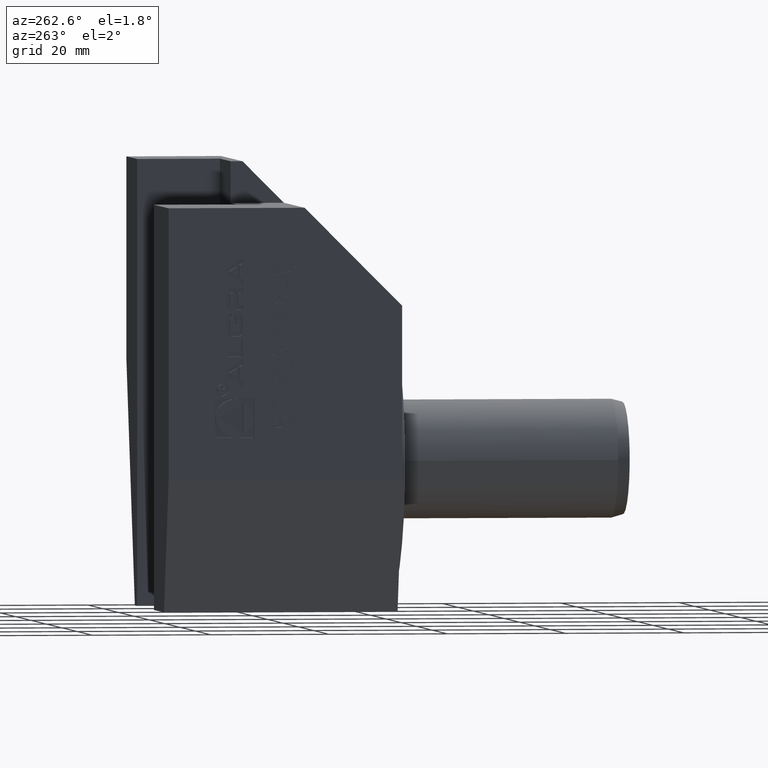
[diagram: clean part render]
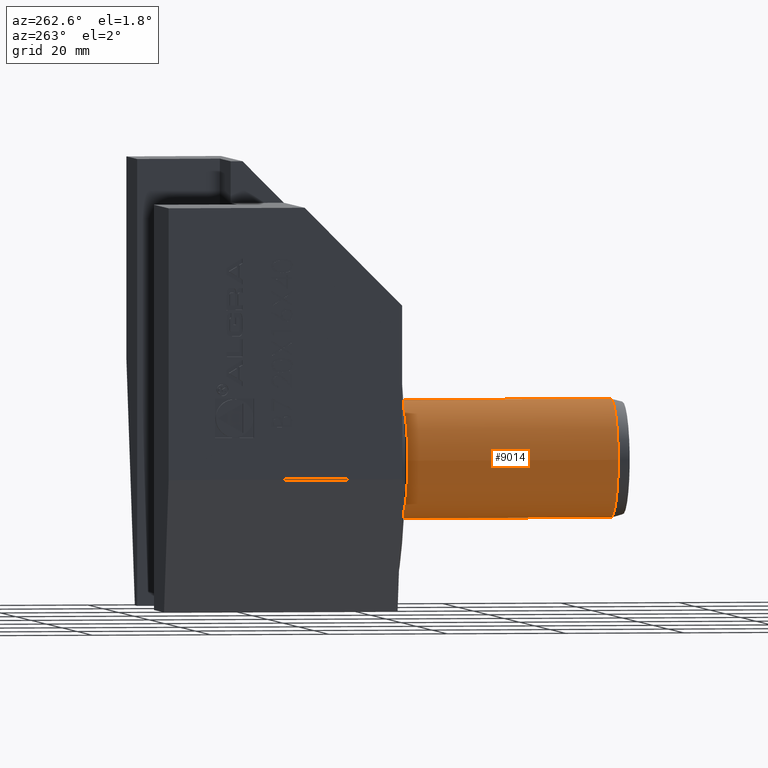
[diagram: same view with one face highlighted and labeled with its STEP entity id]
A machine part, auxiliary view. The second image highlights one B-rep face of the part: STEP entity #9014.
In plain terms, the highlighted cylindrical surface (bore or boss wall) has radius 10 mm, axis along (-0, 1, -0).
Its self-contained STEP definition (entity closure, byte-faithful):
#45 = B_SPLINE_CURVE_WITH_KNOTS ( 'NONE', 3,
 ( #5220, #15437, #10382, #14174, #4969, #3922, #5943, #4529, #501, #7284 ),
 .UNSPECIFIED., .F., .F.,
 ( 4, 2, 2, 2, 4 ),
 ( 2.444052391651729027E-17, 0.0001244734665336323090, 0.0002489469330672401692, 0.0003734203996008480294, 0.0004978938661344558354 ),
 .UNSPECIFIED. ) ;
#48 = CARTESIAN_POINT ( 'NONE',  ( 6.512132034355945009, -19.48786796564373702, -7.588948304417100665 ) ) ;
#60 =( BOUNDED_CURVE ( )  B_SPLINE_CURVE ( 3, ( #11752, #10511, #4054, #8023 ),
 .UNSPECIFIED., .F., .T. ) 
 B_SPLINE_CURVE_WITH_KNOTS ( ( 4, 4 ),
 ( 2.279978314195304723, 2.498091544796507524 ),
 .UNSPECIFIED. ) 
 CURVE ( )  GEOMETRIC_REPRESENTATION_ITEM ( )  RATIONAL_B_SPLINE_CURVE ( ( 1.000000000000000000, 0.9960394792085455196, 0.9960394792085455196, 1.000000000000000000 ) ) 
 REPRESENTATION_ITEM ( '' )  );
#96 = CARTESIAN_POINT ( 'NONE',  ( 6.512132034355957444, -11.91213203435589563, 7.588948304417093560 ) ) ;
#150 =( BOUNDED_CURVE ( )  B_SPLINE_CURVE ( 3, ( #8984, #16359, #14085, #14004 ),
 .UNSPECIFIED., .F., .T. ) 
 B_SPLINE_CURVE_WITH_KNOTS ( ( 4, 4 ),
 ( 5.421570967785097395, 5.639684198386285097 ),
 .UNSPECIFIED. ) 
 CURVE ( )  GEOMETRIC_REPRESENTATION_ITEM ( )  RATIONAL_B_SPLINE_CURVE ( ( 1.000000000000000000, 0.9960394792085460747, 0.9960394792085460747, 1.000000000000000000 ) ) 
 REPRESENTATION_ITEM ( '' )  );
#192 = CARTESIAN_POINT ( 'NONE',  ( 6.433117001089390108, -11.61744606875558716, -7.656071587794730071 ) ) ;
#296 = CARTESIAN_POINT ( 'NONE',  ( 3.108890821621605814E-16, -2.399999999999997691, 0.000000000000000000 ) ) ;
#309 = VERTEX_POINT ( 'NONE', #1043 ) ;
#413 = EDGE_CURVE ( 'NONE', #3593, #1370, #15799, .T. ) ;
#415 = CARTESIAN_POINT ( 'NONE',  ( 6.512132034355966326, -31.48786796564388624, -7.588948304417083790 ) ) ;
#439 = CARTESIAN_POINT ( 'NONE',  ( 7.999999999999992895, -29.99999999999985434, 6.000000000000019540 ) ) ;
#440 = LINE ( 'NONE', #4364, #14393 ) ;
#501 = CARTESIAN_POINT ( 'NONE',  ( 6.486707925491068671, -19.88670792549114097, -7.610764918148364089 ) ) ;
#534 = CARTESIAN_POINT ( 'NONE',  ( 8.000000000000001776, 0.000000000000000000, 6.000000000000001776 ) ) ;
#586 = CARTESIAN_POINT ( 'NONE',  ( 6.464684704718258956, -11.85556452146205864, 7.629434984042060108 ) ) ;
#609 = VECTOR ( 'NONE', #1081, 1000.000000000000000 ) ;
#614 = ORIENTED_EDGE ( 'NONE', *, *, #8103, .T. ) ;
#626 = CARTESIAN_POINT ( 'NONE',  ( 6.433432985716557084, -19.78345407979950821, 7.655805677765549433 ) ) ;
#647 = ORIENTED_EDGE ( 'NONE', *, *, #3797, .F. ) ;
#654 = VERTEX_POINT ( 'NONE', #10621 ) ;
#706 = CARTESIAN_POINT ( 'NONE',  ( 7.064978563004197021, -16.46497856300420537, -7.114546655482785198 ) ) ;
#714 = CARTESIAN_POINT ( 'NONE',  ( 6.464684704718328234, -19.54443547853768237, 7.629434984042005041 ) ) ;
#766 = ORIENTED_EDGE ( 'NONE', *, *, #3844, .T. ) ;
#814 = EDGE_CURVE ( 'NONE', #4875, #7277, #9342, .T. ) ;
#820 = VECTOR ( 'NONE', #6618, 1000.000000000000000 ) ;
#842 = ORIENTED_EDGE ( 'NONE', *, *, #14300, .T. ) ;
#861 = CARTESIAN_POINT ( 'NONE',  ( 6.424349404837968791, -15.74204825058461665, -7.663402295115195884 ) ) ;
#897 = DIRECTION ( 'NONE',  ( -1.295371175675670281E-16, 1.000000000000000000, -0.000000000000000000 ) ) ;
#898 = CARTESIAN_POINT ( 'NONE',  ( 6.433432985716673436, -23.61654592020008536, 7.655805677765453510 ) ) ;
#984 = CARTESIAN_POINT ( 'NONE',  ( 8.000000000000007105, -33.99999999999982947, -5.999999999999998224 ) ) ;
#1004 = CARTESIAN_POINT ( 'NONE',  ( 8.000000000000000000, 0.000000000000000000, 6.000000000000004441 ) ) ;
#1005 = EDGE_CURVE ( 'NONE', #11587, #1314, #2275, .T. ) ;
#1029 = CARTESIAN_POINT ( 'NONE',  ( 7.562906605918449543, -22.43709339408145453, 6.582791192108739864 ) ) ;
#1043 = CARTESIAN_POINT ( 'NONE',  ( 8.000000000000003553, -6.999999999999999112, -5.999999999999991118 ) ) ;
#1080 = ORIENTED_EDGE ( 'NONE', *, *, #14073, .F. ) ;
#1081 = DIRECTION ( 'NONE',  ( -1.295371175675670281E-16, 1.000000000000000000, -0.000000000000000000 ) ) ;
#1089 = EDGE_CURVE ( 'NONE', #12397, #1091, #16154, .T. ) ;
#1091 = VERTEX_POINT ( 'NONE', #10577 ) ;
#1143 = B_SPLINE_CURVE_WITH_KNOTS ( 'NONE', 3,
 ( #7707, #1267, #4793, #7464, #14001, #2215, #9947, #15105, #3500, #4954 ),
 .UNSPECIFIED., .F., .F.,
 ( 4, 2, 2, 2, 4 ),
 ( 8.182674270850422113E-18, 0.0001244734665336132812, 0.0002489469330672183767, 0.0003734203996008234722, 0.0004978938661344285135 ),
 .UNSPECIFIED. ) ;
#1170 = ORIENTED_EDGE ( 'NONE', *, *, #6849, .F. ) ;
#1195 = VERTEX_POINT ( 'NONE', #12257 ) ;
#1214 = VERTEX_POINT ( 'NONE', #3278 ) ;
#1223 = CARTESIAN_POINT ( 'NONE',  ( 6.424179986441989065, -11.74082161868464880, 7.663544318004369416 ) ) ;
#1235 = VECTOR ( 'NONE', #15241, 1000.000000000000000 ) ;
#1250 = CARTESIAN_POINT ( 'NONE',  ( 6.464779022958297539, -15.85561109633214905, -7.629354674003006487 ) ) ;
#1267 = CARTESIAN_POINT ( 'NONE',  ( 6.486759492128647331, -35.88675949212851179, -7.610720668439565628 ) ) ;
#1272 =( BOUNDED_CURVE ( )  B_SPLINE_CURVE ( 3, ( #2931, #9726, #13610, #1647 ),
 .UNSPECIFIED., .F., .T. ) 
 B_SPLINE_CURVE_WITH_KNOTS ( ( 4, 4 ),
 ( 3.785093762383077376, 4.003206992984273072 ),
 .UNSPECIFIED. ) 
 CURVE ( )  GEOMETRIC_REPRESENTATION_ITEM ( )  RATIONAL_B_SPLINE_CURVE ( ( 1.000000000000000000, 0.9960394792085458526, 0.9960394792085458526, 1.000000000000000000 ) ) 
 REPRESENTATION_ITEM ( '' )  );
#1276 = DIRECTION ( 'NONE',  ( -1.295371175675670281E-16, 1.000000000000000000, -0.000000000000000000 ) ) ;
#1314 = VERTEX_POINT ( 'NONE', #3702 ) ;
#1322 = CARTESIAN_POINT ( 'NONE',  ( 8.000000000000001776, -25.99999999999983302, 6.000000000000019540 ) ) ;
#1337 = AXIS2_PLACEMENT_3D ( 'NONE', #8754, #1276, #6458 ) ;
#1370 = VERTEX_POINT ( 'NONE', #10302 ) ;
#1379 = CARTESIAN_POINT ( 'NONE',  ( 6.433432985716624586, -11.61654592020015997, 7.655805677765493478 ) ) ;
#1413 = CARTESIAN_POINT ( 'NONE',  ( 6.512132034355960108, -11.48786796564396617, 7.588948304417086455 ) ) ;
#1422 = CARTESIAN_POINT ( 'NONE',  ( 7.999999999999998224, -13.99999999999990230, -6.000000000000005329 ) ) ;
#1515 = VERTEX_POINT ( 'NONE', #4295 ) ;
#1586 = CARTESIAN_POINT ( 'NONE',  ( 8.000000000000001776, -25.39999999999981739, -5.999999999999998224 ) ) ;
#1605 = LINE ( 'NONE', #11958, #820 ) ;
#1647 = CARTESIAN_POINT ( 'NONE',  ( 6.512132034356006294, -23.91213203435582813, 7.588948304417045598 ) ) ;
#1651 = VECTOR ( 'NONE', #8757, 1000.000000000000000 ) ;
#1652 = CARTESIAN_POINT ( 'NONE',  ( 6.464779022958341059, -11.85561109633212240, -7.629354674002964742 ) ) ;
#1677 = LINE ( 'NONE', #6931, #12232 ) ;
#1681 = CARTESIAN_POINT ( 'NONE',  ( 7.064978563003819545, -12.46497856300375418, -7.114546655483105830 ) ) ;
#1737 = CARTESIAN_POINT ( 'NONE',  ( 6.512132034355960108, -11.48786796564396617, -7.588948304417086455 ) ) ;
#1752 = CARTESIAN_POINT ( 'NONE',  ( 6.433432985716625474, -31.78345407979960768, 7.655805677765495254 ) ) ;
#1819 = CARTESIAN_POINT ( 'NONE',  ( 7.999999999999904965, -18.00000000000000355, 6.000000000000136779 ) ) ;
#1830 = ORIENTED_EDGE ( 'NONE', *, *, #4896, .T. ) ;
#1838 =( BOUNDED_CURVE ( )  B_SPLINE_CURVE ( 3, ( #15463, #11403, #6325, #15224 ),
 .UNSPECIFIED., .F., .T. ) 
 B_SPLINE_CURVE_WITH_KNOTS ( ( 4, 4 ),
 ( 2.279978314195305167, 2.498091544796507968 ),
 .UNSPECIFIED. ) 
 CURVE ( )  GEOMETRIC_REPRESENTATION_ITEM ( )  RATIONAL_B_SPLINE_CURVE ( ( 1.000000000000000000, 0.9960394792085455196, 0.9960394792085455196, 1.000000000000000000 ) ) 
 REPRESENTATION_ITEM ( '' )  );
#1873 = VERTEX_POINT ( 'NONE', #6509 ) ;
#1893 = CARTESIAN_POINT ( 'NONE',  ( 6.486707925491173476, -27.88670792549120847, 7.610764918148275271 ) ) ;
#1898 = CARTESIAN_POINT ( 'NONE',  ( 6.464779022958230037, -19.85561109633195542, 7.629354674003059777 ) ) ;
#1938 = VERTEX_POINT ( 'NONE', #5191 ) ;
#1975 = CARTESIAN_POINT ( 'NONE',  ( 6.424179986441967749, -27.74082161868457419, 7.663544318004384515 ) ) ;
#1995 = CARTESIAN_POINT ( 'NONE',  ( 6.486707925491238313, -23.88670792549121558, 7.610764918148220204 ) ) ;
#2001 = VERTEX_POINT ( 'NONE', #3030 ) ;
#2013 = LINE ( 'NONE', #13804, #4410 ) ;
#2078 = CARTESIAN_POINT ( 'NONE',  ( 6.512132034355945009, -19.48786796564373702, 7.588948304417100665 ) ) ;
#2118 = CARTESIAN_POINT ( 'NONE',  ( 7.064978563003779577, -14.93502143699611828, 7.114546655483145798 ) ) ;
#2137 = CARTESIAN_POINT ( 'NONE',  ( 7.562906605918437108, -26.43709339408138703, -6.582791192108760292 ) ) ;
#2155 = ORIENTED_EDGE ( 'NONE', *, *, #6139, .F. ) ;
#2183 = CARTESIAN_POINT ( 'NONE',  ( 6.512132034355944121, -35.91213203435580681, 7.588948304417111324 ) ) ;
#2186 = EDGE_CURVE ( 'NONE', #3904, #14459, #15244, .T. ) ;
#2201 = ORIENTED_EDGE ( 'NONE', *, *, #3651, .T. ) ;
#2215 = CARTESIAN_POINT ( 'NONE',  ( 6.424179986441976631, -35.65917838131510820, -7.663544318004377409 ) ) ;
#2221 = CARTESIAN_POINT ( 'NONE',  ( 8.000000000000000000, -21.99999999999990408, 6.000000000000012434 ) ) ;
#2275 = LINE ( 'NONE', #7436, #1235 ) ;
#2404 = LINE ( 'NONE', #6137, #1651 ) ;
#2577 = VECTOR ( 'NONE', #2952, 1000.000000000000000 ) ;
#2579 = CARTESIAN_POINT ( 'NONE',  ( 6.486707925491238313, -23.51329207450850944, -7.610764918148221092 ) ) ;
#2604 = CARTESIAN_POINT ( 'NONE',  ( 7.064978563003807110, -20.46497856300360851, 7.114546655483119153 ) ) ;
#2626 = EDGE_CURVE ( 'NONE', #4403, #5041, #7658, .T. ) ;
#2627 = CARTESIAN_POINT ( 'NONE',  ( 7.064978563003821321, -32.46497856300366891, -7.114546655483105830 ) ) ;
#2631 = CARTESIAN_POINT ( 'NONE',  ( 7.999999999999958256, -17.39999999999995595, -5.999999999997979394 ) ) ;
#2639 = CARTESIAN_POINT ( 'NONE',  ( 6.464684704718267838, -31.85556452146197515, -7.629434984042056556 ) ) ;
#2686 = CARTESIAN_POINT ( 'NONE',  ( 7.562906605918439773, -10.43709339408148473, 6.582791192108752298 ) ) ;
#2699 = CARTESIAN_POINT ( 'NONE',  ( 8.000000000000001776, -13.39999999999993463, 6.000000000000001776 ) ) ;
#2711 = VERTEX_POINT ( 'NONE', #10129 ) ;
#2758 = CARTESIAN_POINT ( 'NONE',  ( 8.000000000000007105, -33.99999999999982947, -5.999999999999998224 ) ) ;
#2772 = CARTESIAN_POINT ( 'NONE',  ( 7.562906605918437108, -20.96290660591831667, 6.582791192108759404 ) ) ;
#2790 = LINE ( 'NONE', #6765, #2577 ) ;
#2801 = CARTESIAN_POINT ( 'NONE',  ( 7.562906605918445102, -12.96290660591837884, -6.582791192108747858 ) ) ;
#2813 = DIRECTION ( 'NONE',  ( -8.505734522831414509E-16, 1.000000000000000000, -0.000000000000000000 ) ) ;
#2880 = VERTEX_POINT ( 'NONE', #5867 ) ;
#2894 = CARTESIAN_POINT ( 'NONE',  ( 6.424179986441995283, -31.74082161868456353, -7.663544318004364975 ) ) ;
#2931 = CARTESIAN_POINT ( 'NONE',  ( 8.000000000000001776, -25.39999999999981739, 6.000000000000001776 ) ) ;
#2951 = CARTESIAN_POINT ( 'NONE',  ( 7.999999999999992895, -29.99999999999985434, 6.000000000000019540 ) ) ;
#2952 = DIRECTION ( 'NONE',  ( 1.295371175675670281E-16, -1.000000000000000000, 0.000000000000000000 ) ) ;
#2987 = EDGE_CURVE ( 'NONE', #16701, #6575, #5843, .T. ) ;
#3030 = CARTESIAN_POINT ( 'NONE',  ( 6.512132034355944121, -19.91213203435566470, 7.588948304417104218 ) ) ;
#3061 = EDGE_CURVE ( 'NONE', #13535, #12919, #11271, .T. ) ;
#3092 = CARTESIAN_POINT ( 'NONE',  ( 6.433117001089372344, -27.78255393124420181, 7.656071587794746947 ) ) ;
#3104 = CARTESIAN_POINT ( 'NONE',  ( 7.999999999999979572, -37.39999999999984936, -6.000000000000032863 ) ) ;
#3108 = CARTESIAN_POINT ( 'NONE',  ( 6.424179986441989065, -11.65917838131520767, -7.663544318004367639 ) ) ;
#3121 = CARTESIAN_POINT ( 'NONE',  ( 6.512132034355959220, -31.91213203435581391, 7.588948304417090007 ) ) ;
#3164 = CARTESIAN_POINT ( 'NONE',  ( 7.562906605918458425, -22.43709339408144388, -6.582791192108730982 ) ) ;
#3235 = ORIENTED_EDGE ( 'NONE', *, *, #2186, .F. ) ;
#3269 = VERTEX_POINT ( 'NONE', #15163 ) ;
#3272 = CARTESIAN_POINT ( 'NONE',  ( 6.486759492128649107, -27.88675949212853666, -7.610720668439563852 ) ) ;
#3278 = CARTESIAN_POINT ( 'NONE',  ( 8.000000000000000000, -21.39999999999993818, -6.000000000000005329 ) ) ;
#3311 = VECTOR ( 'NONE', #4472, 1000.000000000000000 ) ;
#3376 = EDGE_CURVE ( 'NONE', #3893, #309, #12943, .T. ) ;
#3396 = CARTESIAN_POINT ( 'NONE',  ( 7.562906605918443326, -30.43709339408140480, -6.582791192108751410 ) ) ;
#3436 = CARTESIAN_POINT ( 'NONE',  ( 6.512132034356006294, -23.91213203435582813, -7.588948304417045598 ) ) ;
#3461 = CARTESIAN_POINT ( 'NONE',  ( 7.999999999999992895, 0.000000000000000000, 6.000000000000013323 ) ) ;
#3462 = CARTESIAN_POINT ( 'NONE',  ( 8.000000000000010658, -33.39999999999986358, 5.999999999999991118 ) ) ;
#3473 =( BOUNDED_CURVE ( )  B_SPLINE_CURVE ( 3, ( #14157, #15344, #12871, #12720 ),
 .UNSPECIFIED., .F., .T. ) 
 B_SPLINE_CURVE_WITH_KNOTS ( ( 4, 4 ),
 ( 5.421570967785100059, 5.639684198386302860 ),
 .UNSPECIFIED. ) 
 CURVE ( )  GEOMETRIC_REPRESENTATION_ITEM ( )  RATIONAL_B_SPLINE_CURVE ( ( 1.000000000000000000, 0.9960394792085455196, 0.9960394792085455196, 1.000000000000000000 ) ) 
 REPRESENTATION_ITEM ( '' )  );
#3500 = CARTESIAN_POINT ( 'NONE',  ( 6.486707925491179694, -35.51329207450849168, -7.610764918148270830 ) ) ;
#3506 = CARTESIAN_POINT ( 'NONE',  ( 8.000000000000000000, -21.99999999999990408, -5.999999999999998224 ) ) ;
#3531 = CARTESIAN_POINT ( 'NONE',  ( 7.999999999999979572, -37.39999999999984936, 6.000000000000032863 ) ) ;
#3572 = VERTEX_POINT ( 'NONE', #4882 ) ;
#3593 = VERTEX_POINT ( 'NONE', #8990 ) ;
#3604 = VECTOR ( 'NONE', #7521, 1000.000000000000000 ) ;
#3651 = EDGE_CURVE ( 'NONE', #1314, #4875, #14092, .T. ) ;
#3663 = CARTESIAN_POINT ( 'NONE',  ( 7.064978563003814216, -34.93502143699602414, 7.114546655483112936 ) ) ;
#3667 =( BOUNDED_CURVE ( )  B_SPLINE_CURVE ( 3, ( #4667, #9826, #8629, #2183 ),
 .UNSPECIFIED., .F., .F. ) 
 B_SPLINE_CURVE_WITH_KNOTS ( ( 4, 4 ),
 ( 3.785093762383081817, 4.003206992984282842 ),
 .UNSPECIFIED. ) 
 CURVE ( )  GEOMETRIC_REPRESENTATION_ITEM ( )  RATIONAL_B_SPLINE_CURVE ( ( 1.000000000000000000, 0.9960394792085456306, 0.9960394792085456306, 1.000000000000000000 ) ) 
 REPRESENTATION_ITEM ( '' )  );
#3696 = B_SPLINE_CURVE_WITH_KNOTS ( 'NONE', 3,
 ( #14856, #8259, #14774, #5974, #13428, #1975, #3092, #9791, #1893, #10880 ),
 .UNSPECIFIED., .F., .F.,
 ( 4, 2, 2, 2, 4 ),
 ( 0.000000000000000000, 0.0001244734665336097847, 0.0002489469330672195693, 0.0003734203996008293811, 0.0004978938661344391387 ),
 .UNSPECIFIED. ) ;
#3702 = CARTESIAN_POINT ( 'NONE',  ( 7.999999999999979572, -37.99999999999982947, -6.000000000000032863 ) ) ;
#3716 = ORIENTED_EDGE ( 'NONE', *, *, #9293, .T. ) ;
#3797 = EDGE_CURVE ( 'NONE', #8720, #2880, #7564, .T. ) ;
#3806 = CARTESIAN_POINT ( 'NONE',  ( 6.512132034355944121, -19.91213203435566470, -7.588948304417093560 ) ) ;
#3824 = ORIENTED_EDGE ( 'NONE', *, *, #1005, .T. ) ;
#3844 = EDGE_CURVE ( 'NONE', #12547, #1515, #4890, .T. ) ;
#3893 = VERTEX_POINT ( 'NONE', #9481 ) ;
#3904 = VERTEX_POINT ( 'NONE', #7491 ) ;
#3922 = CARTESIAN_POINT ( 'NONE',  ( 6.424179986441957091, -19.74082161868449603, -7.663544318004395173 ) ) ;
#3974 = CARTESIAN_POINT ( 'NONE',  ( 7.064978563003807110, -28.46497856300369733, 7.114546655483118265 ) ) ;
#4024 = CARTESIAN_POINT ( 'NONE',  ( 6.464779022958395238, -23.85561109633205845, -7.629354674002923886 ) ) ;
#4050 = EDGE_CURVE ( 'NONE', #11521, #6575, #1605, .T. ) ;
#4054 = CARTESIAN_POINT ( 'NONE',  ( 7.562906605918437997, -28.96290660591833088, -6.582791192108759404 ) ) ;
#4056 = CARTESIAN_POINT ( 'NONE',  ( 8.000000000000010658, -33.39999999999986358, 5.999999999999991118 ) ) ;
#4204 = CARTESIAN_POINT ( 'NONE',  ( 8.000000000000001776, -13.39999999999993463, 6.000000000000001776 ) ) ;
#4240 = EDGE_CURVE ( 'NONE', #14035, #3572, #150, .T. ) ;
#4246 =( BOUNDED_CURVE ( )  B_SPLINE_CURVE ( 3, ( #4056, #11756, #8174, #8261 ),
 .UNSPECIFIED., .F., .F. ) 
 B_SPLINE_CURVE_WITH_KNOTS ( ( 4, 4 ),
 ( 3.785093762383076488, 4.003206992984280177 ),
 .UNSPECIFIED. ) 
 CURVE ( )  GEOMETRIC_REPRESENTATION_ITEM ( )  RATIONAL_B_SPLINE_CURVE ( ( 1.000000000000000000, 0.9960394792085455196, 0.9960394792085455196, 1.000000000000000000 ) ) 
 REPRESENTATION_ITEM ( '' )  );
#4266 = ORIENTED_EDGE ( 'NONE', *, *, #15644, .T. ) ;
#4272 = ORIENTED_EDGE ( 'NONE', *, *, #4967, .F. ) ;
#4274 = CARTESIAN_POINT ( 'NONE',  ( 6.512132034355944121, -27.48786796564388268, -7.588948304417101554 ) ) ;
#4276 = CARTESIAN_POINT ( 'NONE',  ( 6.424179986441941992, -15.74082161868467189, 7.663544318004406719 ) ) ;
#4291 = EDGE_CURVE ( 'NONE', #7272, #1195, #1143, .T. ) ;
#4295 = CARTESIAN_POINT ( 'NONE',  ( 7.999999999999998224, -13.99999999999990230, -6.000000000000005329 ) ) ;
#4320 = CARTESIAN_POINT ( 'NONE',  ( 6.464684704718267838, -31.54443547853771790, 7.629434984042056556 ) ) ;
#4343 = CARTESIAN_POINT ( 'NONE',  ( 6.464779022958346388, -31.54438890366766657, -7.629354674002965631 ) ) ;
#4363 = B_SPLINE_CURVE_WITH_KNOTS ( 'NONE', 3,
 ( #8865, #9989, #4831, #898, #6077, #13872, #7420, #16397, #1995, #4655 ),
 .UNSPECIFIED., .F., .F.,
 ( 4, 2, 2, 2, 4 ),
 ( 8.673617379884035472E-19, 0.0001244734665336068031, 0.0002489469330672127389, 0.0003734203996008186475, 0.0004978938661344246104 ),
 .UNSPECIFIED. ) ;
#4364 = CARTESIAN_POINT ( 'NONE',  ( 8.000000000001518785, -7.170190367371625260E-13, 5.999999999997980282 ) ) ;
#4382 = CARTESIAN_POINT ( 'NONE',  ( 6.486707925491285387, -19.51329207450844194, 7.610764918148178459 ) ) ;
#4403 = VERTEX_POINT ( 'NONE', #10997 ) ;
#4410 = VECTOR ( 'NONE', #6017, 1000.000000000000000 ) ;
#4425 = CARTESIAN_POINT ( 'NONE',  ( 7.999999999999991118, -29.39999999999987779, 6.000000000000012434 ) ) ;
#4431 = ORIENTED_EDGE ( 'NONE', *, *, #11191, .T. ) ;
#4461 = CARTESIAN_POINT ( 'NONE',  ( 7.064978563004197021, -16.46497856300420537, 7.114546655482785198 ) ) ;
#4472 = DIRECTION ( 'NONE',  ( 1.295371175675670281E-16, -1.000000000000000000, 0.000000000000000000 ) ) ;
#4482 = CARTESIAN_POINT ( 'NONE',  ( 6.512132034355948562, -35.48786796564387913, 7.588948304417098001 ) ) ;
#4484 = AXIS2_PLACEMENT_3D ( 'NONE', #296, #5517, #5684 ) ;
#4489 = VECTOR ( 'NONE', #4566, 1000.000000000000000 ) ;
#4513 = CYLINDRICAL_SURFACE ( 'NONE', #5682, 10.00000000000000178 ) ;
#4521 = ORIENTED_EDGE ( 'NONE', *, *, #16235, .T. ) ;
#4529 = CARTESIAN_POINT ( 'NONE',  ( 6.464684704718173691, -19.85556452146194317, -7.629434984042133827 ) ) ;
#4542 = ORIENTED_EDGE ( 'NONE', *, *, #11614, .T. ) ;
#4566 = DIRECTION ( 'NONE',  ( 1.295371175675670281E-16, -1.000000000000000000, 0.000000000000000000 ) ) ;
#4595 = ORIENTED_EDGE ( 'NONE', *, *, #5486, .T. ) ;
#4634 = CARTESIAN_POINT ( 'NONE',  ( 7.562906605919160086, -16.96290660591916222, -6.582791192107984912 ) ) ;
#4641 = CARTESIAN_POINT ( 'NONE',  ( 6.433117001089429188, -19.61744606875542729, 7.656071587794699873 ) ) ;
#4646 = CARTESIAN_POINT ( 'NONE',  ( 6.464684704718246522, -27.54443547853771435, -7.629434984042073431 ) ) ;
#4655 = CARTESIAN_POINT ( 'NONE',  ( 6.512132034356006294, -23.91213203435582813, 7.588948304417045598 ) ) ;
#4666 =( BOUNDED_CURVE ( )  B_SPLINE_CURVE ( 3, ( #8410, #16114, #4461, #5651 ),
 .UNSPECIFIED., .F., .T. ) 
 B_SPLINE_CURVE_WITH_KNOTS ( ( 4, 4 ),
 ( 3.785093762382918392, 4.003206992984285506 ),
 .UNSPECIFIED. ) 
 CURVE ( )  GEOMETRIC_REPRESENTATION_ITEM ( )  RATIONAL_B_SPLINE_CURVE ( ( 1.000000000000000000, 0.9960394792085396354, 0.9960394792085396354, 1.000000000000000000 ) ) 
 REPRESENTATION_ITEM ( '' )  );
#4667 = CARTESIAN_POINT ( 'NONE',  ( 7.999999999999979572, -37.39999999999984936, 6.000000000000032863 ) ) ;
#4683 = CARTESIAN_POINT ( 'NONE',  ( 7.064978563003820433, -30.93502143699603479, -7.114546655483108495 ) ) ;
#4688 = CARTESIAN_POINT ( 'NONE',  ( 7.562906605918420233, -14.43709339408147585, 6.582791192108777167 ) ) ;
#4692 = CARTESIAN_POINT ( 'NONE',  ( 6.486707925491170812, -35.88670792549120847, 7.610764918148278824 ) ) ;
#4723 = LINE ( 'NONE', #12424, #3311 ) ;
#4729 = DIRECTION ( 'NONE',  ( 1.295371175675670281E-16, -1.000000000000000000, 0.000000000000000000 ) ) ;
#4791 = ORIENTED_EDGE ( 'NONE', *, *, #14170, .T. ) ;
#4793 = CARTESIAN_POINT ( 'NONE',  ( 6.464779022958323296, -35.85561109633203358, -7.629354674002986059 ) ) ;
#4831 = CARTESIAN_POINT ( 'NONE',  ( 6.464779022958390797, -23.54438890366767012, 7.629354674002925663 ) ) ;
#4872 = ORIENTED_EDGE ( 'NONE', *, *, #6892, .T. ) ;
#4875 = VERTEX_POINT ( 'NONE', #13503 ) ;
#4882 = CARTESIAN_POINT ( 'NONE',  ( 7.999999999999904965, -18.00000000000000355, -6.000000000000136779 ) ) ;
#4883 = ORIENTED_EDGE ( 'NONE', *, *, #5737, .F. ) ;
#4890 = LINE ( 'NONE', #8514, #14615 ) ;
#4896 = EDGE_CURVE ( 'NONE', #1873, #11582, #440, .T. ) ;
#4910 = CARTESIAN_POINT ( 'NONE',  ( 8.000000000000001776, -13.39999999999993463, -5.999999999999998224 ) ) ;
#4938 = ORIENTED_EDGE ( 'NONE', *, *, #9570, .T. ) ;
#4954 = CARTESIAN_POINT ( 'NONE',  ( 6.512132034355948562, -35.48786796564387913, -7.588948304417098001 ) ) ;
#4967 = EDGE_CURVE ( 'NONE', #10544, #10457, #6009, .T. ) ;
#4969 = CARTESIAN_POINT ( 'NONE',  ( 6.424349404838027411, -19.65795174941511192, -7.663402295115147922 ) ) ;
#5000 = VERTEX_POINT ( 'NONE', #2951 ) ;
#5041 = VERTEX_POINT ( 'NONE', #15988 ) ;
#5113 = CARTESIAN_POINT ( 'NONE',  ( 6.512132034355944121, -35.91213203435580681, 7.588948304417111324 ) ) ;
#5120 = ORIENTED_EDGE ( 'NONE', *, *, #5631, .T. ) ;
#5163 = CARTESIAN_POINT ( 'NONE',  ( 6.433117001089390108, -11.78255393124427108, 7.656071587794732736 ) ) ;
#5171 = CARTESIAN_POINT ( 'NONE',  ( 7.064978563003814216, -34.93502143699601703, -7.114546655483112936 ) ) ;
#5191 = CARTESIAN_POINT ( 'NONE',  ( 8.000000000000001776, -9.999999999999921840, 6.000000000000005329 ) ) ;
#5220 = CARTESIAN_POINT ( 'NONE',  ( 6.512132034355945009, -19.48786796564373702, -7.588948304417100665 ) ) ;
#5274 = CARTESIAN_POINT ( 'NONE',  ( 7.562906605918432668, -26.43709339408139414, 6.582791192108765621 ) ) ;
#5301 = CARTESIAN_POINT ( 'NONE',  ( 6.433432985716625474, -31.61654592020007115, -7.655805677765495254 ) ) ;
#5318 = EDGE_CURVE ( 'NONE', #1873, #8615, #12762, .T. ) ;
#5392 = ORIENTED_EDGE ( 'NONE', *, *, #15956, .F. ) ;
#5416 =( BOUNDED_CURVE ( )  B_SPLINE_CURVE ( 3, ( #14373, #2772, #2604, #7931 ),
 .UNSPECIFIED., .F., .T. ) 
 B_SPLINE_CURVE_WITH_KNOTS ( ( 4, 4 ),
 ( 3.785093762383078708, 4.003206992984281953 ),
 .UNSPECIFIED. ) 
 CURVE ( )  GEOMETRIC_REPRESENTATION_ITEM ( )  RATIONAL_B_SPLINE_CURVE ( ( 1.000000000000000000, 0.9960394792085455196, 0.9960394792085455196, 1.000000000000000000 ) ) 
 REPRESENTATION_ITEM ( '' )  );
#5424 = CARTESIAN_POINT ( 'NONE',  ( 6.486707925491189464, -11.51329207450857517, -7.610764918148261060 ) ) ;
#5486 = EDGE_CURVE ( 'NONE', #3904, #8011, #8797, .T. ) ;
#5517 = DIRECTION ( 'NONE',  ( -1.295371175675670281E-16, 1.000000000000000000, -0.000000000000000000 ) ) ;
#5539 = VECTOR ( 'NONE', #7213, 1000.000000000000000 ) ;
#5571 = B_SPLINE_CURVE_WITH_KNOTS ( 'NONE', 3,
 ( #14866, #3272, #8437, #7148, #6157, #12347, #8355, #4646, #16390, #13525 ),
 .UNSPECIFIED., .F., .F.,
 ( 4, 2, 2, 2, 4 ),
 ( 3.974750819240313445E-18, 0.0001244734665336134167, 0.0002489469330672228219, 0.0003734203996008322543, 0.0004978938661344417408 ),
 .UNSPECIFIED. ) ;
#5587 = CARTESIAN_POINT ( 'NONE',  ( 8.000000000000001776, 0.000000000000000000, -6.000000000000001776 ) ) ;
#5593 = CARTESIAN_POINT ( 'NONE',  ( 6.464684704718260733, -11.54443547853780494, -7.629434984042060108 ) ) ;
#5612 = B_SPLINE_CURVE_WITH_KNOTS ( 'NONE', 3,
 ( #8607, #13001, #6323, #1379, #11478, #1223, #5163, #586, #10561, #13655 ),
 .UNSPECIFIED., .F., .F.,
 ( 4, 2, 2, 2, 4 ),
 ( 0.000000000000000000, 0.0001244734665336056376, 0.0002489469330672112752, 0.0003734203996008169128, 0.0004978938661344225504 ),
 .UNSPECIFIED. ) ;
#5631 = EDGE_CURVE ( 'NONE', #7272, #11587, #7096, .T. ) ;
#5634 = CARTESIAN_POINT ( 'NONE',  ( 6.424349404838021194, -31.65795174941519363, -7.663402295115153251 ) ) ;
#5651 = CARTESIAN_POINT ( 'NONE',  ( 6.512132034355911259, -15.91213203435592050, 7.588948304417128199 ) ) ;
#5672 = CARTESIAN_POINT ( 'NONE',  ( 6.512132034355957444, -11.91213203435589563, -7.588948304417080237 ) ) ;
#5682 = AXIS2_PLACEMENT_3D ( 'NONE', #8047, #14813, #15835 ) ;
#5684 = DIRECTION ( 'NONE',  ( -1.000000000000000000, -1.301042606982605074E-16, 0.000000000000000000 ) ) ;
#5704 = DIRECTION ( 'NONE',  ( -1.295371175675670281E-16, 1.000000000000000000, -0.000000000000000000 ) ) ;
#5737 = EDGE_CURVE ( 'NONE', #11408, #12115, #5612, .T. ) ;
#5747 = CARTESIAN_POINT ( 'NONE',  ( 7.064978563003799117, -36.46497856300367602, -7.114546655483127147 ) ) ;
#5838 = B_SPLINE_CURVE_WITH_KNOTS ( 'NONE', 3,
 ( #7055, #12248, #1898, #626, #9637, #13522, #4641, #714, #4382, #2078 ),
 .UNSPECIFIED., .F., .F.,
 ( 4, 2, 2, 2, 4 ),
 ( 2.359479019930958006E-17, 0.0001244734665336120886, 0.0002489469330672005958, 0.0003734203996007891030, 0.0004978938661343776644 ),
 .UNSPECIFIED. ) ;
#5843 =( BOUNDED_CURVE ( )  B_SPLINE_CURVE ( 3, ( #5860, #4683, #3396, #6272 ),
 .UNSPECIFIED., .F., .T. ) 
 B_SPLINE_CURVE_WITH_KNOTS ( ( 4, 4 ),
 ( 5.421570967785100059, 5.639684198386301084 ),
 .UNSPECIFIED. ) 
 CURVE ( )  GEOMETRIC_REPRESENTATION_ITEM ( )  RATIONAL_B_SPLINE_CURVE ( ( 1.000000000000000000, 0.9960394792085456306, 0.9960394792085456306, 1.000000000000000000 ) ) 
 REPRESENTATION_ITEM ( '' )  );
#5860 = CARTESIAN_POINT ( 'NONE',  ( 6.512132034355966326, -31.48786796564388624, -7.588948304417083790 ) ) ;
#5867 = CARTESIAN_POINT ( 'NONE',  ( 6.512132034355944121, -27.48786796564388268, 7.588948304417101554 ) ) ;
#5887 = CARTESIAN_POINT ( 'NONE',  ( 6.433432985716576624, -15.78345407979972492, -7.655805677765532558 ) ) ;
#5925 = CARTESIAN_POINT ( 'NONE',  ( 7.999999999999991118, -29.39999999999987779, -6.000000000000012434 ) ) ;
#5943 = CARTESIAN_POINT ( 'NONE',  ( 6.433117001089336817, -19.78255393124412365, -7.656071587794777145 ) ) ;
#5947 = CARTESIAN_POINT ( 'NONE',  ( 6.424349404838003430, -35.65795174941519008, 7.663402295115171015 ) ) ;
#5974 = CARTESIAN_POINT ( 'NONE',  ( 6.433432985716604158, -27.61654592020007826, 7.655805677765511241 ) ) ;
#6009 = B_SPLINE_CURVE_WITH_KNOTS ( 'NONE', 3,
 ( #8499, #7697, #1250, #5887, #861, #6048, #11213, #9053, #11593, #11042 ),
 .UNSPECIFIED., .F., .F.,
 ( 4, 2, 2, 2, 4 ),
 ( 0.000000000000000000, 0.0001244734665336058544, 0.0002489469330672117089, 0.0003734203996008175633, 0.0004978938661344234178 ),
 .UNSPECIFIED. ) ;
#6017 = DIRECTION ( 'NONE',  ( 1.295371175675670281E-16, -1.000000000000000000, 0.000000000000000000 ) ) ;
#6048 = CARTESIAN_POINT ( 'NONE',  ( 6.424179986441942880, -15.65917838131523965, -7.663544318004405831 ) ) ;
#6077 = CARTESIAN_POINT ( 'NONE',  ( 6.424349404838064714, -23.65795174941520429, 7.663402295115116836 ) ) ;
#6137 = CARTESIAN_POINT ( 'NONE',  ( 8.000000000000007105, -4.625929269271608384E-15, 5.999999999999993783 ) ) ;
#6139 = EDGE_CURVE ( 'NONE', #1938, #11408, #14484, .T. ) ;
#6143 = EDGE_CURVE ( 'NONE', #10734, #11521, #60, .T. ) ;
#6157 = CARTESIAN_POINT ( 'NONE',  ( 6.424349404837996325, -27.74204825058451718, -7.663402295115173679 ) ) ;
#6210 = CARTESIAN_POINT ( 'NONE',  ( 7.064978563003843526, -22.93502143699606322, 7.114546655483079185 ) ) ;
#6231 = VERTEX_POINT ( 'NONE', #3462 ) ;
#6248 = EDGE_CURVE ( 'NONE', #14459, #9721, #4363, .T. ) ;
#6272 = CARTESIAN_POINT ( 'NONE',  ( 7.999999999999992895, -29.99999999999985434, -6.000000000000005329 ) ) ;
#6283 = CARTESIAN_POINT ( 'NONE',  ( 7.562906605918443326, -34.43709339408139414, 6.582791192108753187 ) ) ;
#6323 = CARTESIAN_POINT ( 'NONE',  ( 6.464779022958342836, -11.54438890366773940, 7.629354674002964742 ) ) ;
#6325 = CARTESIAN_POINT ( 'NONE',  ( 7.562906605918438885, -20.96290660591832022, -6.582791192108757627 ) ) ;
#6360 = ORIENTED_EDGE ( 'NONE', *, *, #814, .T. ) ;
#6377 =( BOUNDED_CURVE ( )  B_SPLINE_CURVE ( 3, ( #8497, #8580, #2137, #12655 ),
 .UNSPECIFIED., .F., .T. ) 
 B_SPLINE_CURVE_WITH_KNOTS ( ( 4, 4 ),
 ( 5.421570967785097395, 5.639684198386301084 ),
 .UNSPECIFIED. ) 
 CURVE ( )  GEOMETRIC_REPRESENTATION_ITEM ( )  RATIONAL_B_SPLINE_CURVE ( ( 1.000000000000000000, 0.9960394792085455196, 0.9960394792085455196, 1.000000000000000000 ) ) 
 REPRESENTATION_ITEM ( '' )  );
#6424 = ORIENTED_EDGE ( 'NONE', *, *, #14592, .F. ) ;
#6458 = DIRECTION ( 'NONE',  ( -1.000000000000000000, 0.000000000000000000, 0.000000000000000000 ) ) ;
#6509 = CARTESIAN_POINT ( 'NONE',  ( 7.999999999999904965, -18.00000000000000355, 6.000000000000136779 ) ) ;
#6546 = VECTOR ( 'NONE', #897, 1000.000000000000000 ) ;
#6575 = VERTEX_POINT ( 'NONE', #16724 ) ;
#6589 = CARTESIAN_POINT ( 'NONE',  ( 7.064978563003815992, -10.93502143699611118, 7.114546655483108495 ) ) ;
#6618 = DIRECTION ( 'NONE',  ( 1.295371175675670281E-16, -1.000000000000000000, 0.000000000000000000 ) ) ;
#6715 = CARTESIAN_POINT ( 'NONE',  ( 6.486707925491143278, -15.88670792549131150, 7.610764918148302804 ) ) ;
#6742 = EDGE_CURVE ( 'NONE', #11582, #1370, #4666, .T. ) ;
#6750 = CARTESIAN_POINT ( 'NONE',  ( 6.486759492128664206, -11.88675949212860239, -7.610720668439546976 ) ) ;
#6765 = CARTESIAN_POINT ( 'NONE',  ( 8.000000000000007105, -4.625929269271608384E-15, -5.999999999999993783 ) ) ;
#6767 = CARTESIAN_POINT ( 'NONE',  ( 6.424349404838021194, -31.74204825058449941, 7.663402295115153251 ) ) ;
#6780 = ORIENTED_EDGE ( 'NONE', *, *, #13874, .T. ) ;
#6849 = EDGE_CURVE ( 'NONE', #5000, #5041, #8857, .T. ) ;
#6865 = DIRECTION ( 'NONE',  ( 1.000000000000000000, 8.673617379884033500E-16, 0.000000000000000000 ) ) ;
#6892 = EDGE_CURVE ( 'NONE', #16426, #10022, #9779, .T. ) ;
#6910 = EDGE_CURVE ( 'NONE', #8471, #2711, #6377, .T. ) ;
#6927 = CARTESIAN_POINT ( 'NONE',  ( 6.424179986441995283, -31.65917838131513662, 7.663544318004364975 ) ) ;
#6931 = CARTESIAN_POINT ( 'NONE',  ( 8.000000000000000000, 0.000000000000000000, -6.000000000000004441 ) ) ;
#6967 = CARTESIAN_POINT ( 'NONE',  ( 7.064978563003847967, -22.93502143699605611, -7.114546655483075632 ) ) ;
#6971 = CARTESIAN_POINT ( 'NONE',  ( 7.562906605918433556, -30.43709339408141901, 6.582791192108762068 ) ) ;
#6988 = CARTESIAN_POINT ( 'NONE',  ( 6.512132034355945009, -19.48786796564373702, 7.588948304417100665 ) ) ;
#7055 = CARTESIAN_POINT ( 'NONE',  ( 6.512132034355944121, -19.91213203435566470, 7.588948304417104218 ) ) ;
#7096 =( BOUNDED_CURVE ( )  B_SPLINE_CURVE ( 3, ( #13446, #5747, #16057, #10901 ),
 .UNSPECIFIED., .F., .F. ) 
 B_SPLINE_CURVE_WITH_KNOTS ( ( 4, 4 ),
 ( 2.279978314195304279, 2.498091544796504859 ),
 .UNSPECIFIED. ) 
 CURVE ( )  GEOMETRIC_REPRESENTATION_ITEM ( )  RATIONAL_B_SPLINE_CURVE ( ( 1.000000000000000000, 0.9960394792085456306, 0.9960394792085456306, 1.000000000000000000 ) ) 
 REPRESENTATION_ITEM ( '' )  );
#7107 = ORIENTED_EDGE ( 'NONE', *, *, #11612, .T. ) ;
#7114 = CARTESIAN_POINT ( 'NONE',  ( 6.512132034356011623, -23.48786796564390045, 7.588948304417043822 ) ) ;
#7147 = EDGE_CURVE ( 'NONE', #8197, #8197, #15534, .T. ) ;
#7148 = CARTESIAN_POINT ( 'NONE',  ( 6.433432985716604158, -27.78345407979963611, -7.655805677765512129 ) ) ;
#7213 = DIRECTION ( 'NONE',  ( -1.295371175675670281E-16, 1.000000000000000000, -0.000000000000000000 ) ) ;
#7272 = VERTEX_POINT ( 'NONE', #13779 ) ;
#7277 = VERTEX_POINT ( 'NONE', #3531 ) ;
#7284 = CARTESIAN_POINT ( 'NONE',  ( 6.512132034355944121, -19.91213203435566470, -7.588948304417093560 ) ) ;
#7353 = CARTESIAN_POINT ( 'NONE',  ( 6.512132034356011623, -23.48786796564390045, 7.588948304417043822 ) ) ;
#7398 = CARTESIAN_POINT ( 'NONE',  ( 7.562906605918461089, -24.96290660591827404, -6.582791192108726541 ) ) ;
#7420 = CARTESIAN_POINT ( 'NONE',  ( 6.433117001089439846, -23.78255393124420891, 7.656071587794690991 ) ) ;
#7436 = CARTESIAN_POINT ( 'NONE',  ( 7.999999999999979572, 0.000000000000000000, -6.000000000000031086 ) ) ;
#7464 = CARTESIAN_POINT ( 'NONE',  ( 6.433432985716605046, -35.78345407979960413, -7.655805677765512129 ) ) ;
#7477 = VECTOR ( 'NONE', #5704, 1000.000000000000000 ) ;
#7491 = CARTESIAN_POINT ( 'NONE',  ( 8.000000000000000000, -21.99999999999990408, 6.000000000000012434 ) ) ;
#7521 = DIRECTION ( 'NONE',  ( -1.295371175675670281E-16, 1.000000000000000000, -0.000000000000000000 ) ) ;
#7524 = CARTESIAN_POINT ( 'NONE',  ( 6.512132034355945009, -19.48786796564373702, 7.588948304417100665 ) ) ;
#7526 = CARTESIAN_POINT ( 'NONE',  ( 8.000000000000010658, 0.000000000000000000, 5.999999999999989342 ) ) ;
#7531 = VERTEX_POINT ( 'NONE', #10638 ) ;
#7564 =( BOUNDED_CURVE ( )  B_SPLINE_CURVE ( 3, ( #1322, #5274, #10664, #15821 ),
 .UNSPECIFIED., .F., .F. ) 
 B_SPLINE_CURVE_WITH_KNOTS ( ( 4, 4 ),
 ( 0.6435011087932864804, 0.8616143393944892814 ),
 .UNSPECIFIED. ) 
 CURVE ( )  GEOMETRIC_REPRESENTATION_ITEM ( )  RATIONAL_B_SPLINE_CURVE ( ( 1.000000000000000000, 0.9960394792085455196, 0.9960394792085455196, 1.000000000000000000 ) ) 
 REPRESENTATION_ITEM ( '' )  );
#7590 = EDGE_CURVE ( 'NONE', #16426, #3593, #16414, .T. ) ;
#7657 =( BOUNDED_CURVE ( )  B_SPLINE_CURVE ( 3, ( #7753, #5171, #7838, #2758 ),
 .UNSPECIFIED., .F., .T. ) 
 B_SPLINE_CURVE_WITH_KNOTS ( ( 4, 4 ),
 ( 5.421570967785098283, 5.639684198386301972 ),
 .UNSPECIFIED. ) 
 CURVE ( )  GEOMETRIC_REPRESENTATION_ITEM ( )  RATIONAL_B_SPLINE_CURVE ( ( 1.000000000000000000, 0.9960394792085455196, 0.9960394792085455196, 1.000000000000000000 ) ) 
 REPRESENTATION_ITEM ( '' )  );
#7658 = B_SPLINE_CURVE_WITH_KNOTS ( 'NONE', 3,
 ( #3121, #13458, #9223, #1752, #6767, #6927, #14394, #4320, #8204, #9491 ),
 .UNSPECIFIED., .F., .F.,
 ( 4, 2, 2, 2, 4 ),
 ( 1.226634733346699349E-18, 0.0001244734665336053394, 0.0002489469330672094863, 0.0003734203996008136060, 0.0004978938661344176715 ),
 .UNSPECIFIED. ) ;
#7697 = CARTESIAN_POINT ( 'NONE',  ( 6.486759492128617133, -15.88675949212862548, -7.610720668439587833 ) ) ;
#7707 = CARTESIAN_POINT ( 'NONE',  ( 6.512132034355944121, -35.91213203435580681, -7.588948304417093560 ) ) ;
#7716 = CARTESIAN_POINT ( 'NONE',  ( 6.512132034355940569, -27.91213203435582813, -7.588948304417107771 ) ) ;
#7728 = CARTESIAN_POINT ( 'NONE',  ( 6.512132034355912147, -15.48786796564399104, 7.588948304417127311 ) ) ;
#7753 = CARTESIAN_POINT ( 'NONE',  ( 6.512132034355948562, -35.48786796564387913, -7.588948304417098001 ) ) ;
#7782 = EDGE_CURVE ( 'NONE', #10734, #8471, #5571, .T. ) ;
#7838 = CARTESIAN_POINT ( 'NONE',  ( 7.562906605918444214, -34.43709339408139414, -6.582791192108751410 ) ) ;
#7931 = CARTESIAN_POINT ( 'NONE',  ( 6.512132034355944121, -19.91213203435566470, 7.588948304417104218 ) ) ;
#8011 = VERTEX_POINT ( 'NONE', #9959 ) ;
#8023 = CARTESIAN_POINT ( 'NONE',  ( 7.999999999999991118, -29.39999999999987779, -6.000000000000012434 ) ) ;
#8047 = CARTESIAN_POINT ( 'NONE',  ( 0.000000000000000000, 0.000000000000000000, 0.000000000000000000 ) ) ;
#8052 = CARTESIAN_POINT ( 'NONE',  ( 6.512132034355957444, -11.91213203435589563, -7.588948304417080237 ) ) ;
#8059 = CARTESIAN_POINT ( 'NONE',  ( 6.486707925491193016, -31.88670792549119781, -7.610764918148258396 ) ) ;
#8103 = EDGE_CURVE ( 'NONE', #14035, #9241, #45, .T. ) ;
#8151 = CARTESIAN_POINT ( 'NONE',  ( 6.512132034356006294, -23.91213203435582813, 7.588948304417045598 ) ) ;
#8174 = CARTESIAN_POINT ( 'NONE',  ( 7.064978563003823986, -32.46497856300366891, 7.114546655483104942 ) ) ;
#8197 = VERTEX_POINT ( 'NONE', #10590 ) ;
#8204 = CARTESIAN_POINT ( 'NONE',  ( 6.486707925491193016, -31.51329207450850234, 7.610764918148258396 ) ) ;
#8207 = ORIENTED_EDGE ( 'NONE', *, *, #6143, .T. ) ;
#8248 = DIRECTION ( 'NONE',  ( -1.295371175675670281E-16, 1.000000000000000000, -0.000000000000000000 ) ) ;
#8259 = CARTESIAN_POINT ( 'NONE',  ( 6.486759492128651772, -27.51324050787117770, 7.610720668439562075 ) ) ;
#8261 = CARTESIAN_POINT ( 'NONE',  ( 6.512132034355959220, -31.91213203435581391, 7.588948304417090007 ) ) ;
#8355 = CARTESIAN_POINT ( 'NONE',  ( 6.433117001089375009, -27.61744606875550545, -7.656071587794746058 ) ) ;
#8410 = CARTESIAN_POINT ( 'NONE',  ( 7.999999999999958256, -17.39999999999995595, 5.999999999997979394 ) ) ;
#8437 = CARTESIAN_POINT ( 'NONE',  ( 6.464779022958325072, -27.85561109633205845, -7.629354674002981618 ) ) ;
#8471 = VERTEX_POINT ( 'NONE', #4274 ) ;
#8497 = CARTESIAN_POINT ( 'NONE',  ( 6.512132034355944121, -27.48786796564388268, -7.588948304417101554 ) ) ;
#8499 = CARTESIAN_POINT ( 'NONE',  ( 6.512132034355911259, -15.91213203435592050, -7.588948304417128199 ) ) ;
#8514 = CARTESIAN_POINT ( 'NONE',  ( 8.000000000000001776, 0.000000000000000000, -6.000000000000001776 ) ) ;
#8519 = VERTEX_POINT ( 'NONE', #5113 ) ;
#8580 = CARTESIAN_POINT ( 'NONE',  ( 7.064978563003807110, -26.93502143699602414, -7.114546655483121818 ) ) ;
#8607 = CARTESIAN_POINT ( 'NONE',  ( 6.512132034355960108, -11.48786796564396617, 7.588948304417086455 ) ) ;
#8615 = VERTEX_POINT ( 'NONE', #7524 ) ;
#8629 = CARTESIAN_POINT ( 'NONE',  ( 7.064978563003795564, -36.46497856300366891, 7.114546655483129811 ) ) ;
#8663 = CARTESIAN_POINT ( 'NONE',  ( 8.000000000000001776, 0.000000000000000000, 6.000000000000001776 ) ) ;
#8675 = CARTESIAN_POINT ( 'NONE',  ( 7.064978563003851519, -24.46497856300366536, -7.114546655483073856 ) ) ;
#8715 = EDGE_CURVE ( 'NONE', #7277, #8519, #3667, .T. ) ;
#8720 = VERTEX_POINT ( 'NONE', #16238 ) ;
#8754 = CARTESIAN_POINT ( 'NONE',  ( 4.922410467567547560E-15, -38.00000000000000000, 0.000000000000000000 ) ) ;
#8757 = DIRECTION ( 'NONE',  ( -1.295371175675670281E-16, 1.000000000000000000, -0.000000000000000000 ) ) ;
#8771 = ORIENTED_EDGE ( 'NONE', *, *, #1089, .F. ) ;
#8791 = EDGE_CURVE ( 'NONE', #8011, #2001, #5416, .T. ) ;
#8797 = LINE ( 'NONE', #1004, #3604 ) ;
#8825 = CARTESIAN_POINT ( 'NONE',  ( 8.000000000000010658, -33.39999999999986358, -5.999999999999991118 ) ) ;
#8857 =( BOUNDED_CURVE ( )  B_SPLINE_CURVE ( 3, ( #439, #6971, #13240, #16032 ),
 .UNSPECIFIED., .F., .T. ) 
 B_SPLINE_CURVE_WITH_KNOTS ( ( 4, 4 ),
 ( 0.6435011087932872575, 0.8616143393944863949 ),
 .UNSPECIFIED. ) 
 CURVE ( )  GEOMETRIC_REPRESENTATION_ITEM ( )  RATIONAL_B_SPLINE_CURVE ( ( 1.000000000000000000, 0.9960394792085456306, 0.9960394792085456306, 1.000000000000000000 ) ) 
 REPRESENTATION_ITEM ( '' )  );
#8865 = CARTESIAN_POINT ( 'NONE',  ( 6.512132034356011623, -23.48786796564390045, 7.588948304417043822 ) ) ;
#8904 = EDGE_CURVE ( 'NONE', #11804, #8519, #16219, .T. ) ;
#8948 = EDGE_LOOP ( 'NONE', ( #5120, #3824, #2201, #6360, #9414, #16672, #5392, #6780, #10399, #10446, #1170, #842, #4521, #13552, #647, #3716, #7107, #12546, #3235, #4595, #16782, #15482, #16566, #1830, #15957, #9873, #13950, #4872, #11742, #4883, #2155, #4938, #13572, #15330, #1080, #8771, #14003, #766, #14046, #4272, #16382, #9592, #15473, #614, #15787, #4791, #6424, #9440, #4266, #4542, #12540, #10058, #8207, #16358, #16102, #4431, #9585, #9506, #9940, #12875 ) ) ;
#8984 = CARTESIAN_POINT ( 'NONE',  ( 6.512132034355945009, -19.48786796564373702, -7.588948304417100665 ) ) ;
#8990 = CARTESIAN_POINT ( 'NONE',  ( 6.512132034355912147, -15.48786796564399104, 7.588948304417127311 ) ) ;
#9014 = ADVANCED_FACE ( 'Defeature completata2_8', ( #9324, #14559 ), #4513, .T. ) ;
#9053 = CARTESIAN_POINT ( 'NONE',  ( 6.464684704718215436, -15.54443547853782981, -7.629434984042097412 ) ) ;
#9069 = CARTESIAN_POINT ( 'NONE',  ( 8.000000000000007105, -33.99999999999982947, 5.999999999999998224 ) ) ;
#9090 = CARTESIAN_POINT ( 'NONE',  ( 8.000000000000010658, -33.39999999999986358, -5.999999999999991118 ) ) ;
#9120 = VERTEX_POINT ( 'NONE', #10369 ) ;
#9132 = CARTESIAN_POINT ( 'NONE',  ( 6.512132034355940569, -27.91213203435582813, 7.588948304417107771 ) ) ;
#9163 = AXIS2_PLACEMENT_3D ( 'NONE', #11791, #2813, #6865 ) ;
#9168 = EDGE_CURVE ( 'NONE', #10457, #1515, #10595, .T. ) ;
#9172 = CARTESIAN_POINT ( 'NONE',  ( 6.424349404837967903, -15.65795174941528956, 7.663402295115193219 ) ) ;
#9223 = CARTESIAN_POINT ( 'NONE',  ( 6.464779022958346388, -31.85561109633204424, 7.629354674002965631 ) ) ;
#9241 = VERTEX_POINT ( 'NONE', #3806 ) ;
#9293 = EDGE_CURVE ( 'NONE', #8720, #11599, #9715, .T. ) ;
#9308 = EDGE_CURVE ( 'NONE', #2880, #7531, #3696, .T. ) ;
#9324 = FACE_OUTER_BOUND ( 'NONE', #12451, .T. ) ;
#9342 = LINE ( 'NONE', #10782, #7477 ) ;
#9350 = CARTESIAN_POINT ( 'NONE',  ( 7.999999999999998224, -13.99999999999990230, 6.000000000000015987 ) ) ;
#9414 = ORIENTED_EDGE ( 'NONE', *, *, #8715, .T. ) ;
#9435 = CARTESIAN_POINT ( 'NONE',  ( 6.464684704718212771, -15.85556452146208706, 7.629434984042101853 ) ) ;
#9438 =( BOUNDED_CURVE ( )  B_SPLINE_CURVE ( 3, ( #9530, #6967, #3164, #3506 ),
 .UNSPECIFIED., .F., .T. ) 
 B_SPLINE_CURVE_WITH_KNOTS ( ( 4, 4 ),
 ( 5.421570967785106276, 5.639684198386301972 ),
 .UNSPECIFIED. ) 
 CURVE ( )  GEOMETRIC_REPRESENTATION_ITEM ( )  RATIONAL_B_SPLINE_CURVE ( ( 1.000000000000000000, 0.9960394792085458526, 0.9960394792085458526, 1.000000000000000000 ) ) 
 REPRESENTATION_ITEM ( '' )  );
#9440 = ORIENTED_EDGE ( 'NONE', *, *, #3061, .F. ) ;
#9466 = CARTESIAN_POINT ( 'NONE',  ( 7.064978563003765366, -18.93502143699600282, 7.114546655483154680 ) ) ;
#9481 = CARTESIAN_POINT ( 'NONE',  ( 8.000000000000003553, -6.999999999999999112, 5.999999999999994671 ) ) ;
#9491 = CARTESIAN_POINT ( 'NONE',  ( 6.512132034355966326, -31.48786796564388624, 7.588948304417083790 ) ) ;
#9506 = ORIENTED_EDGE ( 'NONE', *, *, #13443, .T. ) ;
#9511 = CARTESIAN_POINT ( 'NONE',  ( 6.433117001089396325, -31.78255393124420536, -7.656071587794727407 ) ) ;
#9530 = CARTESIAN_POINT ( 'NONE',  ( 6.512132034356011623, -23.48786796564390045, -7.588948304417043822 ) ) ;
#9562 = CARTESIAN_POINT ( 'NONE',  ( 7.999999999999958256, -17.39999999999995595, 5.999999999997979394 ) ) ;
#9570 = EDGE_CURVE ( 'NONE', #1938, #3893, #2404, .T. ) ;
#9585 = ORIENTED_EDGE ( 'NONE', *, *, #15983, .T. ) ;
#9592 = ORIENTED_EDGE ( 'NONE', *, *, #14457, .T. ) ;
#9637 = CARTESIAN_POINT ( 'NONE',  ( 6.424349404837979449, -19.74204825058440704, 7.663402295115186114 ) ) ;
#9715 = LINE ( 'NONE', #534, #16792 ) ;
#9721 = VERTEX_POINT ( 'NONE', #8151 ) ;
#9726 = CARTESIAN_POINT ( 'NONE',  ( 7.562906605918460201, -24.96290660591827404, 6.582791192108725653 ) ) ;
#9779 = LINE ( 'NONE', #8663, #5539 ) ;
#9791 = CARTESIAN_POINT ( 'NONE',  ( 6.464684704718240305, -27.85556452146198581, 7.629434984042076984 ) ) ;
#9803 = CARTESIAN_POINT ( 'NONE',  ( 8.000000000000001776, -25.39999999999981739, 6.000000000000001776 ) ) ;
#9826 = CARTESIAN_POINT ( 'NONE',  ( 7.562906605918422898, -36.96290660591829180, 6.582791192108776279 ) ) ;
#9851 = CARTESIAN_POINT ( 'NONE',  ( 6.464684704718242969, -35.85556452146198581, 7.629434984042075207 ) ) ;
#9873 = ORIENTED_EDGE ( 'NONE', *, *, #413, .F. ) ;
#9893 =( BOUNDED_CURVE ( )  B_SPLINE_CURVE ( 3, ( #3436, #8675, #7398, #15288 ),
 .UNSPECIFIED., .F., .F. ) 
 B_SPLINE_CURVE_WITH_KNOTS ( ( 4, 4 ),
 ( 2.279978314195313160, 2.498091544796509300 ),
 .UNSPECIFIED. ) 
 CURVE ( )  GEOMETRIC_REPRESENTATION_ITEM ( )  RATIONAL_B_SPLINE_CURVE ( ( 1.000000000000000000, 0.9960394792085458526, 0.9960394792085458526, 1.000000000000000000 ) ) 
 REPRESENTATION_ITEM ( '' )  );
#9940 = ORIENTED_EDGE ( 'NONE', *, *, #12576, .F. ) ;
#9947 = CARTESIAN_POINT ( 'NONE',  ( 6.433117001089378562, -35.61744606875549835, -7.656071587794742506 ) ) ;
#9959 = CARTESIAN_POINT ( 'NONE',  ( 8.000000000000000000, -21.39999999999993818, 6.000000000000005329 ) ) ;
#9989 = CARTESIAN_POINT ( 'NONE',  ( 6.486759492128716609, -23.51324050787118125, 7.610720668439507008 ) ) ;
#9991 = CARTESIAN_POINT ( 'NONE',  ( 6.512132034355957444, -11.91213203435589563, 7.588948304417093560 ) ) ;
#10022 = VERTEX_POINT ( 'NONE', #2699 ) ;
#10058 = ORIENTED_EDGE ( 'NONE', *, *, #7782, .F. ) ;
#10117 = CARTESIAN_POINT ( 'NONE',  ( 7.562906605918450431, -32.96290660591830601, -6.582791192108744305 ) ) ;
#10129 = CARTESIAN_POINT ( 'NONE',  ( 8.000000000000001776, -25.99999999999983302, -6.000000000000005329 ) ) ;
#10177 = LINE ( 'NONE', #7526, #609 ) ;
#10206 = CARTESIAN_POINT ( 'NONE',  ( 6.512132034355948562, -35.48786796564387913, 7.588948304417098001 ) ) ;
#10234 = CARTESIAN_POINT ( 'NONE',  ( 6.464684704718309582, -23.54443547853772856, -7.629434984042021917 ) ) ;
#10302 = CARTESIAN_POINT ( 'NONE',  ( 6.512132034355911259, -15.91213203435592050, 7.588948304417128199 ) ) ;
#10313 = CARTESIAN_POINT ( 'NONE',  ( 6.424349404838064714, -23.74204825058452073, -7.663402295115116836 ) ) ;
#10369 = CARTESIAN_POINT ( 'NONE',  ( 8.000000000000000000, -21.99999999999990408, -5.999999999999998224 ) ) ;
#10382 = CARTESIAN_POINT ( 'NONE',  ( 6.464779022958409449, -19.54438890366761328, -7.629354674002909675 ) ) ;
#10399 = ORIENTED_EDGE ( 'NONE', *, *, #16165, .T. ) ;
#10446 = ORIENTED_EDGE ( 'NONE', *, *, #2626, .T. ) ;
#10457 = VERTEX_POINT ( 'NONE', #15972 ) ;
#10511 = CARTESIAN_POINT ( 'NONE',  ( 7.064978563003807999, -28.46497856300369733, -7.114546655483116488 ) ) ;
#10535 = VERTEX_POINT ( 'NONE', #984 ) ;
#10544 = VERTEX_POINT ( 'NONE', #13865 ) ;
#10561 = CARTESIAN_POINT ( 'NONE',  ( 6.486707925491189464, -11.88670792549128130, 7.610764918148261948 ) ) ;
#10577 = CARTESIAN_POINT ( 'NONE',  ( 6.512132034355960108, -11.48786796564396617, -7.588948304417086455 ) ) ;
#10590 = CARTESIAN_POINT ( 'NONE',  ( -10.00000000000000178, -2.399999999999999023, 0.000000000000000000 ) ) ;
#10595 =( BOUNDED_CURVE ( )  B_SPLINE_CURVE ( 3, ( #11697, #13048, #14400, #1422 ),
 .UNSPECIFIED., .F., .T. ) 
 B_SPLINE_CURVE_WITH_KNOTS ( ( 4, 4 ),
 ( 5.421570967785092954, 5.639684198386301084 ),
 .UNSPECIFIED. ) 
 CURVE ( )  GEOMETRIC_REPRESENTATION_ITEM ( )  RATIONAL_B_SPLINE_CURVE ( ( 1.000000000000000000, 0.9960394792085454085, 0.9960394792085454085, 1.000000000000000000 ) ) 
 REPRESENTATION_ITEM ( '' )  );
#10621 = CARTESIAN_POINT ( 'NONE',  ( 8.000000000000007105, -33.99999999999982947, 5.999999999999998224 ) ) ;
#10638 = CARTESIAN_POINT ( 'NONE',  ( 6.512132034355940569, -27.91213203435582813, 7.588948304417107771 ) ) ;
#10664 = CARTESIAN_POINT ( 'NONE',  ( 7.064978563003802670, -26.93502143699602414, 7.114546655483124482 ) ) ;
#10734 = VERTEX_POINT ( 'NONE', #7716 ) ;
#10782 = CARTESIAN_POINT ( 'NONE',  ( 7.999999999999979572, 0.000000000000000000, 6.000000000000031086 ) ) ;
#10880 = CARTESIAN_POINT ( 'NONE',  ( 6.512132034355940569, -27.91213203435582813, 7.588948304417107771 ) ) ;
#10901 = CARTESIAN_POINT ( 'NONE',  ( 7.999999999999979572, -37.39999999999984936, -6.000000000000032863 ) ) ;
#10909 = VERTEX_POINT ( 'NONE', #1586 ) ;
#10997 = CARTESIAN_POINT ( 'NONE',  ( 6.512132034355959220, -31.91213203435581391, 7.588948304417090007 ) ) ;
#11026 = CARTESIAN_POINT ( 'NONE',  ( 6.512132034355948562, -35.48786796564387913, 7.588948304417098001 ) ) ;
#11042 = CARTESIAN_POINT ( 'NONE',  ( 6.512132034355912147, -15.48786796564399104, -7.588948304417127311 ) ) ;
#11064 =( BOUNDED_CURVE ( )  B_SPLINE_CURVE ( 3, ( #15753, #1681, #2801, #14561 ),
 .UNSPECIFIED., .F., .T. ) 
 B_SPLINE_CURVE_WITH_KNOTS ( ( 4, 4 ),
 ( 2.279978314195306943, 2.498091544796508856 ),
 .UNSPECIFIED. ) 
 CURVE ( )  GEOMETRIC_REPRESENTATION_ITEM ( )  RATIONAL_B_SPLINE_CURVE ( ( 1.000000000000000000, 0.9960394792085456306, 0.9960394792085456306, 1.000000000000000000 ) ) 
 REPRESENTATION_ITEM ( '' )  );
#11101 = CARTESIAN_POINT ( 'NONE',  ( 6.424179986441974854, -35.74082161868456353, 7.663544318004380962 ) ) ;
#11191 = EDGE_CURVE ( 'NONE', #16701, #13009, #14726, .T. ) ;
#11213 = CARTESIAN_POINT ( 'NONE',  ( 6.433117001089344811, -15.61744606875561203, -7.656071587794769151 ) ) ;
#11271 = B_SPLINE_CURVE_WITH_KNOTS ( 'NONE', 3,
 ( #14186, #16786, #4024, #15615, #10313, #15525, #11468, #10234, #2579, #12747 ),
 .UNSPECIFIED., .F., .F.,
 ( 4, 2, 2, 2, 4 ),
 ( 1.226634733346699349E-18, 0.0001244734665336070471, 0.0002489469330672129015, 0.0003734203996008187017, 0.0004978938661344245020 ),
 .UNSPECIFIED. ) ;
#11394 = EDGE_CURVE ( 'NONE', #309, #12386, #2790, .T. ) ;
#11403 = CARTESIAN_POINT ( 'NONE',  ( 7.064978563003811551, -20.46497856300361207, -7.114546655483116488 ) ) ;
#11408 = VERTEX_POINT ( 'NONE', #1413 ) ;
#11468 = CARTESIAN_POINT ( 'NONE',  ( 6.433117001089439846, -23.61744606875551611, -7.656071587794690991 ) ) ;
#11478 = CARTESIAN_POINT ( 'NONE',  ( 6.424349404838015865, -11.65795174941527002, 7.663402295115156804 ) ) ;
#11521 = VERTEX_POINT ( 'NONE', #5925 ) ;
#11549 = CARTESIAN_POINT ( 'NONE',  ( 6.512132034356011623, -23.48786796564390045, -7.588948304417043822 ) ) ;
#11582 = VERTEX_POINT ( 'NONE', #9562 ) ;
#11587 = VERTEX_POINT ( 'NONE', #3104 ) ;
#11593 = CARTESIAN_POINT ( 'NONE',  ( 6.486707925491143278, -15.51329207450860537, -7.610764918148300140 ) ) ;
#11599 = VERTEX_POINT ( 'NONE', #9803 ) ;
#11612 = EDGE_CURVE ( 'NONE', #11599, #9721, #1272, .T. ) ;
#11614 = EDGE_CURVE ( 'NONE', #10909, #2711, #12001, .T. ) ;
#11697 = CARTESIAN_POINT ( 'NONE',  ( 6.512132034355912147, -15.48786796564399104, -7.588948304417127311 ) ) ;
#11742 = ORIENTED_EDGE ( 'NONE', *, *, #13302, .T. ) ;
#11752 = CARTESIAN_POINT ( 'NONE',  ( 6.512132034355940569, -27.91213203435582813, -7.588948304417107771 ) ) ;
#11756 = CARTESIAN_POINT ( 'NONE',  ( 7.562906605918453984, -32.96290660591830601, 6.582791192108743417 ) ) ;
#11791 = CARTESIAN_POINT ( 'NONE',  ( 9.067598229729700347E-16, -7.000000000000006217, 0.000000000000000000 ) ) ;
#11804 = VERTEX_POINT ( 'NONE', #4482 ) ;
#11818 = EDGE_CURVE ( 'NONE', #2001, #8615, #5838, .T. ) ;
#11840 = CARTESIAN_POINT ( 'NONE',  ( 6.433432985716622809, -11.78345407979969472, -7.655805677765494366 ) ) ;
#11958 = CARTESIAN_POINT ( 'NONE',  ( 7.999999999999992895, 0.000000000000000000, -6.000000000000013323 ) ) ;
#12001 = LINE ( 'NONE', #5587, #4489 ) ;
#12050 = CARTESIAN_POINT ( 'NONE',  ( 6.512132034355911259, -15.91213203435592050, 7.588948304417128199 ) ) ;
#12115 = VERTEX_POINT ( 'NONE', #9991 ) ;
#12130 = CARTESIAN_POINT ( 'NONE',  ( 6.433117001089343923, -15.78255393124429773, 7.656071587794770927 ) ) ;
#12222 = CARTESIAN_POINT ( 'NONE',  ( 6.512132034355959220, -31.91213203435581391, -7.588948304417087343 ) ) ;
#12232 = VECTOR ( 'NONE', #13285, 1000.000000000000000 ) ;
#12248 = CARTESIAN_POINT ( 'NONE',  ( 6.486759492128546967, -19.88675949212846206, 7.610720668439649117 ) ) ;
#12257 = CARTESIAN_POINT ( 'NONE',  ( 6.512132034355948562, -35.48786796564387913, -7.588948304417098001 ) ) ;
#12276 = EDGE_CURVE ( 'NONE', #10544, #3269, #12848, .T. ) ;
#12347 = CARTESIAN_POINT ( 'NONE',  ( 6.424179986441969525, -27.65917838131513662, -7.663544318004383626 ) ) ;
#12386 = VERTEX_POINT ( 'NONE', #14480 ) ;
#12393 = CARTESIAN_POINT ( 'NONE',  ( 6.464779022958333954, -35.54438890366765236, 7.629354674002975401 ) ) ;
#12397 = VERTEX_POINT ( 'NONE', #8052 ) ;
#12424 = CARTESIAN_POINT ( 'NONE',  ( 8.000000000000010658, 0.000000000000000000, -5.999999999999989342 ) ) ;
#12451 = EDGE_LOOP ( 'NONE', ( #12779 ) ) ;
#12472 = CARTESIAN_POINT ( 'NONE',  ( 6.512132034355912147, -15.48786796564399104, 7.588948304417127311 ) ) ;
#12519 = LINE ( 'NONE', #3461, #6546 ) ;
#12540 = ORIENTED_EDGE ( 'NONE', *, *, #6910, .F. ) ;
#12546 = ORIENTED_EDGE ( 'NONE', *, *, #6248, .F. ) ;
#12547 = VERTEX_POINT ( 'NONE', #4910 ) ;
#12576 = EDGE_CURVE ( 'NONE', #1195, #10535, #7657, .T. ) ;
#12655 = CARTESIAN_POINT ( 'NONE',  ( 8.000000000000001776, -25.99999999999983302, -6.000000000000005329 ) ) ;
#12720 = CARTESIAN_POINT ( 'NONE',  ( 8.000000000000001776, -9.999999999999921840, -5.999999999999991118 ) ) ;
#12747 = CARTESIAN_POINT ( 'NONE',  ( 6.512132034356011623, -23.48786796564390045, -7.588948304417043822 ) ) ;
#12762 =( BOUNDED_CURVE ( )  B_SPLINE_CURVE ( 3, ( #1819, #16218, #9466, #6988 ),
 .UNSPECIFIED., .F., .T. ) 
 B_SPLINE_CURVE_WITH_KNOTS ( ( 4, 4 ),
 ( 0.6435011087933011353, 0.8616143393944891704 ),
 .UNSPECIFIED. ) 
 CURVE ( )  GEOMETRIC_REPRESENTATION_ITEM ( )  RATIONAL_B_SPLINE_CURVE ( ( 1.000000000000000000, 0.9960394792085460747, 0.9960394792085460747, 1.000000000000000000 ) ) 
 REPRESENTATION_ITEM ( '' )  );
#12779 = ORIENTED_EDGE ( 'NONE', *, *, #7147, .F. ) ;
#12848 =( BOUNDED_CURVE ( )  B_SPLINE_CURVE ( 3, ( #14247, #706, #4634, #2631 ),
 .UNSPECIFIED., .F., .F. ) 
 B_SPLINE_CURVE_WITH_KNOTS ( ( 4, 4 ),
 ( 2.279978314195301170, 2.498091544796667840 ),
 .UNSPECIFIED. ) 
 CURVE ( )  GEOMETRIC_REPRESENTATION_ITEM ( )  RATIONAL_B_SPLINE_CURVE ( ( 1.000000000000000000, 0.9960394792085396354, 0.9960394792085396354, 1.000000000000000000 ) ) 
 REPRESENTATION_ITEM ( '' )  );
#12871 = CARTESIAN_POINT ( 'NONE',  ( 7.562906605918448655, -10.43709339408147763, -6.582791192108746081 ) ) ;
#12875 = ORIENTED_EDGE ( 'NONE', *, *, #4291, .F. ) ;
#12919 = VERTEX_POINT ( 'NONE', #11549 ) ;
#12937 = CARTESIAN_POINT ( 'NONE',  ( 7.999999999999991118, -29.39999999999987779, 6.000000000000012434 ) ) ;
#12943 = CIRCLE ( 'NONE', #9163, 10.00000000000000178 ) ;
#12961 = CARTESIAN_POINT ( 'NONE',  ( 6.512132034355959220, -31.91213203435581391, -7.588948304417087343 ) ) ;
#12973 = CARTESIAN_POINT ( 'NONE',  ( 6.512132034355959220, -31.91213203435581391, -7.588948304417087343 ) ) ;
#13001 = CARTESIAN_POINT ( 'NONE',  ( 6.486759492128663318, -11.51324050787125408, 7.610720668439547865 ) ) ;
#13009 = VERTEX_POINT ( 'NONE', #12222 ) ;
#13048 = CARTESIAN_POINT ( 'NONE',  ( 7.064978563003782241, -14.93502143699611473, -7.114546655483143134 ) ) ;
#13154 = CARTESIAN_POINT ( 'NONE',  ( 6.433432985716579289, -15.61654592020018839, 7.655805677765532558 ) ) ;
#13190 = CARTESIAN_POINT ( 'NONE',  ( 6.424349404838015865, -11.74204825058458823, -7.663402295115158580 ) ) ;
#13240 = CARTESIAN_POINT ( 'NONE',  ( 7.064978563003815104, -30.93502143699603835, 7.114546655483112048 ) ) ;
#13256 = EDGE_CURVE ( 'NONE', #9241, #1214, #1838, .T. ) ;
#13285 = DIRECTION ( 'NONE',  ( 1.295371175675670281E-16, -1.000000000000000000, 0.000000000000000000 ) ) ;
#13302 = EDGE_CURVE ( 'NONE', #10022, #12115, #15568, .T. ) ;
#13428 = CARTESIAN_POINT ( 'NONE',  ( 6.424349404837997213, -27.65795174941519008, 7.663402295115174567 ) ) ;
#13438 =( BOUNDED_CURVE ( )  B_SPLINE_CURVE ( 3, ( #12937, #15559, #3974, #9132 ),
 .UNSPECIFIED., .F., .T. ) 
 B_SPLINE_CURVE_WITH_KNOTS ( ( 4, 4 ),
 ( 3.785093762383079152, 4.003206992984281953 ),
 .UNSPECIFIED. ) 
 CURVE ( )  GEOMETRIC_REPRESENTATION_ITEM ( )  RATIONAL_B_SPLINE_CURVE ( ( 1.000000000000000000, 0.9960394792085455196, 0.9960394792085455196, 1.000000000000000000 ) ) 
 REPRESENTATION_ITEM ( '' )  );
#13443 = EDGE_CURVE ( 'NONE', #13634, #10535, #4723, .T. ) ;
#13446 = CARTESIAN_POINT ( 'NONE',  ( 6.512132034355944121, -35.91213203435580681, -7.588948304417093560 ) ) ;
#13458 = CARTESIAN_POINT ( 'NONE',  ( 6.486759492128670423, -31.88675949212850469, 7.610720668439544312 ) ) ;
#13503 = CARTESIAN_POINT ( 'NONE',  ( 7.999999999999979572, -37.99999999999982947, 6.000000000000029310 ) ) ;
#13522 = CARTESIAN_POINT ( 'NONE',  ( 6.424179986442004164, -19.65917838131502648, 7.663544318004353428 ) ) ;
#13525 = CARTESIAN_POINT ( 'NONE',  ( 6.512132034355944121, -27.48786796564388268, -7.588948304417101554 ) ) ;
#13535 = VERTEX_POINT ( 'NONE', #14098 ) ;
#13552 = ORIENTED_EDGE ( 'NONE', *, *, #9308, .F. ) ;
#13572 = ORIENTED_EDGE ( 'NONE', *, *, #3376, .T. ) ;
#13610 = CARTESIAN_POINT ( 'NONE',  ( 7.064978563003850631, -24.46497856300366180, 7.114546655483071191 ) ) ;
#13634 = VERTEX_POINT ( 'NONE', #9090 ) ;
#13655 = CARTESIAN_POINT ( 'NONE',  ( 6.512132034355957444, -11.91213203435589563, 7.588948304417093560 ) ) ;
#13657 = CARTESIAN_POINT ( 'NONE',  ( 6.486759492128656213, -35.51324050787117415, 7.610720668439558523 ) ) ;
#13686 = DIRECTION ( 'NONE',  ( -1.295371175675670281E-16, 1.000000000000000000, -0.000000000000000000 ) ) ;
#13779 = CARTESIAN_POINT ( 'NONE',  ( 6.512132034355944121, -35.91213203435580681, -7.588948304417093560 ) ) ;
#13804 = CARTESIAN_POINT ( 'NONE',  ( 8.000000000001518785, -7.170190367371625260E-13, -5.999999999997980282 ) ) ;
#13865 = CARTESIAN_POINT ( 'NONE',  ( 6.512132034355911259, -15.91213203435592050, -7.588948304417128199 ) ) ;
#13872 = CARTESIAN_POINT ( 'NONE',  ( 6.424179986442037915, -23.74082161868458130, 7.663544318004328559 ) ) ;
#13874 = EDGE_CURVE ( 'NONE', #654, #6231, #10177, .T. ) ;
#13950 = ORIENTED_EDGE ( 'NONE', *, *, #7590, .F. ) ;
#14001 = CARTESIAN_POINT ( 'NONE',  ( 6.424349404837999877, -35.74204825058449586, -7.663402295115173679 ) ) ;
#14003 = ORIENTED_EDGE ( 'NONE', *, *, #16049, .T. ) ;
#14004 = CARTESIAN_POINT ( 'NONE',  ( 7.999999999999904965, -18.00000000000000355, -6.000000000000136779 ) ) ;
#14035 = VERTEX_POINT ( 'NONE', #48 ) ;
#14046 = ORIENTED_EDGE ( 'NONE', *, *, #9168, .F. ) ;
#14073 = EDGE_CURVE ( 'NONE', #1091, #12386, #3473, .T. ) ;
#14085 = CARTESIAN_POINT ( 'NONE',  ( 7.562906605918363390, -18.43709339408147230, -6.582791192108835787 ) ) ;
#14092 = CIRCLE ( 'NONE', #1337, 10.00000000000000178 ) ;
#14098 = CARTESIAN_POINT ( 'NONE',  ( 6.512132034356006294, -23.91213203435582813, -7.588948304417045598 ) ) ;
#14157 = CARTESIAN_POINT ( 'NONE',  ( 6.512132034355960108, -11.48786796564396617, -7.588948304417086455 ) ) ;
#14170 = EDGE_CURVE ( 'NONE', #1214, #9120, #1677, .T. ) ;
#14174 = CARTESIAN_POINT ( 'NONE',  ( 6.433432985716656560, -19.61654592020001076, -7.655805677765466832 ) ) ;
#14186 = CARTESIAN_POINT ( 'NONE',  ( 6.512132034356006294, -23.91213203435582813, -7.588948304417045598 ) ) ;
#14218 = CARTESIAN_POINT ( 'NONE',  ( 6.512132034355960108, -11.48786796564396617, 7.588948304417086455 ) ) ;
#14247 = CARTESIAN_POINT ( 'NONE',  ( 6.512132034355911259, -15.91213203435592050, -7.588948304417128199 ) ) ;
#14300 = EDGE_CURVE ( 'NONE', #5000, #14863, #12519, .T. ) ;
#14301 = CARTESIAN_POINT ( 'NONE',  ( 8.000000000000001776, -9.999999999999921840, 6.000000000000005329 ) ) ;
#14373 = CARTESIAN_POINT ( 'NONE',  ( 8.000000000000000000, -21.39999999999993818, 6.000000000000005329 ) ) ;
#14393 = VECTOR ( 'NONE', #8248, 1000.000000000000000 ) ;
#14394 = CARTESIAN_POINT ( 'NONE',  ( 6.433117001089396325, -31.61744606875549479, 7.656071587794727407 ) ) ;
#14400 = CARTESIAN_POINT ( 'NONE',  ( 7.562906605918427339, -14.43709339408147052, -6.582791192108770950 ) ) ;
#14457 = EDGE_CURVE ( 'NONE', #3269, #3572, #2013, .T. ) ;
#14459 = VERTEX_POINT ( 'NONE', #7353 ) ;
#14480 = CARTESIAN_POINT ( 'NONE',  ( 8.000000000000001776, -9.999999999999921840, -5.999999999999991118 ) ) ;
#14484 =( BOUNDED_CURVE ( )  B_SPLINE_CURVE ( 3, ( #14301, #2686, #6589, #14218 ),
 .UNSPECIFIED., .F., .T. ) 
 B_SPLINE_CURVE_WITH_KNOTS ( ( 4, 4 ),
 ( 0.6435011087932854812, 0.8616143393944863949 ),
 .UNSPECIFIED. ) 
 CURVE ( )  GEOMETRIC_REPRESENTATION_ITEM ( )  RATIONAL_B_SPLINE_CURVE ( ( 1.000000000000000000, 0.9960394792085456306, 0.9960394792085456306, 1.000000000000000000 ) ) 
 REPRESENTATION_ITEM ( '' )  );
#14521 = CARTESIAN_POINT ( 'NONE',  ( 7.562906605918442438, -12.96290660591837707, 6.582791192108750522 ) ) ;
#14559 = FACE_OUTER_BOUND ( 'NONE', #8948, .T. ) ;
#14561 = CARTESIAN_POINT ( 'NONE',  ( 8.000000000000001776, -13.39999999999993463, -5.999999999999998224 ) ) ;
#14568 = CARTESIAN_POINT ( 'NONE',  ( 6.512132034355966326, -31.48786796564388624, -7.588948304417083790 ) ) ;
#14592 = EDGE_CURVE ( 'NONE', #12919, #9120, #9438, .T. ) ;
#14615 = VECTOR ( 'NONE', #4729, 1000.000000000000000 ) ;
#14726 = B_SPLINE_CURVE_WITH_KNOTS ( 'NONE', 3,
 ( #415, #15933, #4343, #5301, #5634, #2894, #9511, #2639, #8059, #12973 ),
 .UNSPECIFIED., .F., .F.,
 ( 4, 2, 2, 2, 4 ),
 ( 2.453269466693398698E-18, 0.0001244734665336060442, 0.0002489469330672095947, 0.0003734203996008131723, 0.0004978938661344168041 ),
 .UNSPECIFIED. ) ;
#14774 = CARTESIAN_POINT ( 'NONE',  ( 6.464779022958329513, -27.54438890366765591, 7.629354674002979841 ) ) ;
#14813 = DIRECTION ( 'NONE',  ( -1.295371175675670281E-16, 1.000000000000000000, -0.000000000000000000 ) ) ;
#14856 = CARTESIAN_POINT ( 'NONE',  ( 6.512132034355944121, -27.48786796564388268, 7.588948304417101554 ) ) ;
#14863 = VERTEX_POINT ( 'NONE', #4425 ) ;
#14866 = CARTESIAN_POINT ( 'NONE',  ( 6.512132034355940569, -27.91213203435582813, -7.588948304417107771 ) ) ;
#15004 = CARTESIAN_POINT ( 'NONE',  ( 6.512132034355944121, -35.91213203435580681, 7.588948304417111324 ) ) ;
#15105 = CARTESIAN_POINT ( 'NONE',  ( 6.464684704718251851, -35.54443547853771435, -7.629434984042070766 ) ) ;
#15163 = CARTESIAN_POINT ( 'NONE',  ( 7.999999999999958256, -17.39999999999995595, -5.999999999997979394 ) ) ;
#15224 = CARTESIAN_POINT ( 'NONE',  ( 8.000000000000000000, -21.39999999999993818, -6.000000000000005329 ) ) ;
#15241 = DIRECTION ( 'NONE',  ( 1.295371175675670281E-16, -1.000000000000000000, 0.000000000000000000 ) ) ;
#15244 =( BOUNDED_CURVE ( )  B_SPLINE_CURVE ( 3, ( #2221, #1029, #6210, #7114 ),
 .UNSPECIFIED., .F., .T. ) 
 B_SPLINE_CURVE_WITH_KNOTS ( ( 4, 4 ),
 ( 0.6435011087932863694, 0.8616143393944800666 ),
 .UNSPECIFIED. ) 
 CURVE ( )  GEOMETRIC_REPRESENTATION_ITEM ( )  RATIONAL_B_SPLINE_CURVE ( ( 1.000000000000000000, 0.9960394792085459637, 0.9960394792085459637, 1.000000000000000000 ) ) 
 REPRESENTATION_ITEM ( '' )  );
#15288 = CARTESIAN_POINT ( 'NONE',  ( 8.000000000000001776, -25.39999999999981739, -5.999999999999998224 ) ) ;
#15330 = ORIENTED_EDGE ( 'NONE', *, *, #11394, .T. ) ;
#15344 = CARTESIAN_POINT ( 'NONE',  ( 7.064978563003822210, -10.93502143699610762, -7.114546655483104942 ) ) ;
#15437 = CARTESIAN_POINT ( 'NONE',  ( 6.486759492128756577, -19.51324050787113151, -7.610720668439469705 ) ) ;
#15463 = CARTESIAN_POINT ( 'NONE',  ( 6.512132034355944121, -19.91213203435566470, -7.588948304417093560 ) ) ;
#15473 = ORIENTED_EDGE ( 'NONE', *, *, #4240, .F. ) ;
#15482 = ORIENTED_EDGE ( 'NONE', *, *, #11818, .T. ) ;
#15525 = CARTESIAN_POINT ( 'NONE',  ( 6.424179986442038803, -23.65917838131514728, -7.663544318004326783 ) ) ;
#15534 = CIRCLE ( 'NONE', #4484, 10.00000000000000178 ) ;
#15559 = CARTESIAN_POINT ( 'NONE',  ( 7.562906605918436220, -28.96290660591833088, 6.582791192108759404 ) ) ;
#15568 =( BOUNDED_CURVE ( )  B_SPLINE_CURVE ( 3, ( #4204, #14521, #15702, #96 ),
 .UNSPECIFIED., .F., .T. ) 
 B_SPLINE_CURVE_WITH_KNOTS ( ( 4, 4 ),
 ( 3.785093762383077820, 4.003206992984280177 ),
 .UNSPECIFIED. ) 
 CURVE ( )  GEOMETRIC_REPRESENTATION_ITEM ( )  RATIONAL_B_SPLINE_CURVE ( ( 1.000000000000000000, 0.9960394792085456306, 0.9960394792085456306, 1.000000000000000000 ) ) 
 REPRESENTATION_ITEM ( '' )  );
#15615 = CARTESIAN_POINT ( 'NONE',  ( 6.433432985716673436, -23.78345407979963255, -7.655805677765453510 ) ) ;
#15644 = EDGE_CURVE ( 'NONE', #13535, #10909, #9893, .T. ) ;
#15681 = CARTESIAN_POINT ( 'NONE',  ( 6.486759492128623350, -15.51324050787128606, 7.610720668439588721 ) ) ;
#15702 = CARTESIAN_POINT ( 'NONE',  ( 7.064978563003816880, -12.46497856300375062, 7.114546655483109383 ) ) ;
#15753 = CARTESIAN_POINT ( 'NONE',  ( 6.512132034355957444, -11.91213203435589563, -7.588948304417080237 ) ) ;
#15787 = ORIENTED_EDGE ( 'NONE', *, *, #13256, .T. ) ;
#15799 = B_SPLINE_CURVE_WITH_KNOTS ( 'NONE', 3,
 ( #7728, #15681, #15865, #13154, #9172, #4276, #12130, #9435, #6715, #12050 ),
 .UNSPECIFIED., .F., .F.,
 ( 4, 2, 2, 2, 4 ),
 ( 0.000000000000000000, 0.0001244734665336010297, 0.0002489469330672020595, 0.0003734203996008134976, 0.0004978938661344249356 ),
 .UNSPECIFIED. ) ;
#15821 = CARTESIAN_POINT ( 'NONE',  ( 6.512132034355944121, -27.48786796564388268, 7.588948304417101554 ) ) ;
#15835 = DIRECTION ( 'NONE',  ( -1.000000000000000000, -1.295371175675670034E-16, 0.000000000000000000 ) ) ;
#15865 = CARTESIAN_POINT ( 'NONE',  ( 6.464779022958297539, -15.54438890366776072, 7.629354674003002934 ) ) ;
#15933 = CARTESIAN_POINT ( 'NONE',  ( 6.486759492128670423, -31.51324050787118836, -7.610720668439544312 ) ) ;
#15956 = EDGE_CURVE ( 'NONE', #654, #11804, #16775, .T. ) ;
#15957 = ORIENTED_EDGE ( 'NONE', *, *, #6742, .T. ) ;
#15972 = CARTESIAN_POINT ( 'NONE',  ( 6.512132034355912147, -15.48786796564399104, -7.588948304417127311 ) ) ;
#15983 = EDGE_CURVE ( 'NONE', #13009, #13634, #16239, .T. ) ;
#15988 = CARTESIAN_POINT ( 'NONE',  ( 6.512132034355966326, -31.48786796564388624, 7.588948304417083790 ) ) ;
#16032 = CARTESIAN_POINT ( 'NONE',  ( 6.512132034355966326, -31.48786796564388624, 7.588948304417083790 ) ) ;
#16049 = EDGE_CURVE ( 'NONE', #12397, #12547, #11064, .T. ) ;
#16057 = CARTESIAN_POINT ( 'NONE',  ( 7.562906605918425562, -36.96290660591829180, -6.582791192108773615 ) ) ;
#16102 = ORIENTED_EDGE ( 'NONE', *, *, #2987, .F. ) ;
#16114 = CARTESIAN_POINT ( 'NONE',  ( 7.562906605919160974, -16.96290660591916222, 6.582791192107984912 ) ) ;
#16154 = B_SPLINE_CURVE_WITH_KNOTS ( 'NONE', 3,
 ( #5672, #6750, #1652, #11840, #13190, #3108, #192, #5593, #5424, #1737 ),
 .UNSPECIFIED., .F., .F.,
 ( 4, 2, 2, 2, 4 ),
 ( 3.004629197474318463E-18, 0.0001244734665336090528, 0.0002489469330672150699, 0.0003734203996008210870, 0.0004978938661344272125 ),
 .UNSPECIFIED. ) ;
#16165 = EDGE_CURVE ( 'NONE', #6231, #4403, #4246, .T. ) ;
#16218 = CARTESIAN_POINT ( 'NONE',  ( 7.562906605918364278, -18.43709339408147585, 6.582791192108834899 ) ) ;
#16219 = B_SPLINE_CURVE_WITH_KNOTS ( 'NONE', 3,
 ( #11026, #13657, #12393, #16349, #5947, #11101, #16263, #9851, #4692, #15004 ),
 .UNSPECIFIED., .F., .F.,
 ( 4, 2, 2, 2, 4 ),
 ( 1.226634733346699349E-18, 0.0001244734665336084023, 0.0002489469330672156120, 0.0003734203996008228217, 0.0004978938661344299230 ),
 .UNSPECIFIED. ) ;
#16235 = EDGE_CURVE ( 'NONE', #14863, #7531, #13438, .T. ) ;
#16238 = CARTESIAN_POINT ( 'NONE',  ( 8.000000000000001776, -25.99999999999983302, 6.000000000000019540 ) ) ;
#16239 =( BOUNDED_CURVE ( )  B_SPLINE_CURVE ( 3, ( #12961, #2627, #10117, #8825 ),
 .UNSPECIFIED., .F., .T. ) 
 B_SPLINE_CURVE_WITH_KNOTS ( ( 4, 4 ),
 ( 2.279978314195306055, 2.498091544796509744 ),
 .UNSPECIFIED. ) 
 CURVE ( )  GEOMETRIC_REPRESENTATION_ITEM ( )  RATIONAL_B_SPLINE_CURVE ( ( 1.000000000000000000, 0.9960394792085455196, 0.9960394792085455196, 1.000000000000000000 ) ) 
 REPRESENTATION_ITEM ( '' )  );
#16257 = CARTESIAN_POINT ( 'NONE',  ( 7.999999999999998224, -13.99999999999990230, 6.000000000000015987 ) ) ;
#16263 = CARTESIAN_POINT ( 'NONE',  ( 6.433117001089375897, -35.78255393124419470, 7.656071587794744282 ) ) ;
#16349 = CARTESIAN_POINT ( 'NONE',  ( 6.433432985716609487, -35.61654592020007470, 7.655805677765507689 ) ) ;
#16358 = ORIENTED_EDGE ( 'NONE', *, *, #4050, .T. ) ;
#16359 = CARTESIAN_POINT ( 'NONE',  ( 7.064978563003764478, -18.93502143699600282, -7.114546655483154680 ) ) ;
#16382 = ORIENTED_EDGE ( 'NONE', *, *, #12276, .T. ) ;
#16390 = CARTESIAN_POINT ( 'NONE',  ( 6.486707925491175253, -27.51329207450849879, -7.610764918148274383 ) ) ;
#16397 = CARTESIAN_POINT ( 'NONE',  ( 6.464684704718309582, -23.85556452146197870, 7.629434984042019252 ) ) ;
#16414 =( BOUNDED_CURVE ( )  B_SPLINE_CURVE ( 3, ( #16257, #4688, #2118, #12472 ),
 .UNSPECIFIED., .F., .T. ) 
 B_SPLINE_CURVE_WITH_KNOTS ( ( 4, 4 ),
 ( 0.6435011087932864804, 0.8616143393944936113 ),
 .UNSPECIFIED. ) 
 CURVE ( )  GEOMETRIC_REPRESENTATION_ITEM ( )  RATIONAL_B_SPLINE_CURVE ( ( 1.000000000000000000, 0.9960394792085454085, 0.9960394792085454085, 1.000000000000000000 ) ) 
 REPRESENTATION_ITEM ( '' )  );
#16426 = VERTEX_POINT ( 'NONE', #9350 ) ;
#16566 = ORIENTED_EDGE ( 'NONE', *, *, #5318, .F. ) ;
#16672 = ORIENTED_EDGE ( 'NONE', *, *, #8904, .F. ) ;
#16701 = VERTEX_POINT ( 'NONE', #14568 ) ;
#16724 = CARTESIAN_POINT ( 'NONE',  ( 7.999999999999992895, -29.99999999999985434, -6.000000000000005329 ) ) ;
#16775 =( BOUNDED_CURVE ( )  B_SPLINE_CURVE ( 3, ( #9069, #6283, #3663, #10206 ),
 .UNSPECIFIED., .F., .F. ) 
 B_SPLINE_CURVE_WITH_KNOTS ( ( 4, 4 ),
 ( 0.6435011087932847040, 0.8616143393944881712 ),
 .UNSPECIFIED. ) 
 CURVE ( )  GEOMETRIC_REPRESENTATION_ITEM ( )  RATIONAL_B_SPLINE_CURVE ( ( 1.000000000000000000, 0.9960394792085455196, 0.9960394792085455196, 1.000000000000000000 ) ) 
 REPRESENTATION_ITEM ( '' )  );
#16782 = ORIENTED_EDGE ( 'NONE', *, *, #8791, .T. ) ;
#16786 = CARTESIAN_POINT ( 'NONE',  ( 6.486759492128715721, -23.88675949212852601, -7.610720668439507008 ) ) ;
#16792 = VECTOR ( 'NONE', #13686, 1000.000000000000000 ) ;